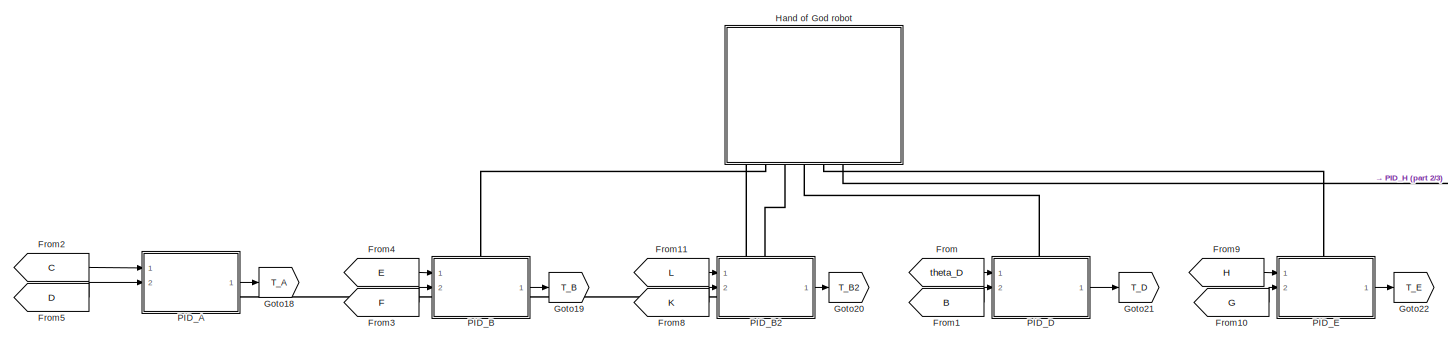
[diagram: root canvas - part 1/3, top center region]
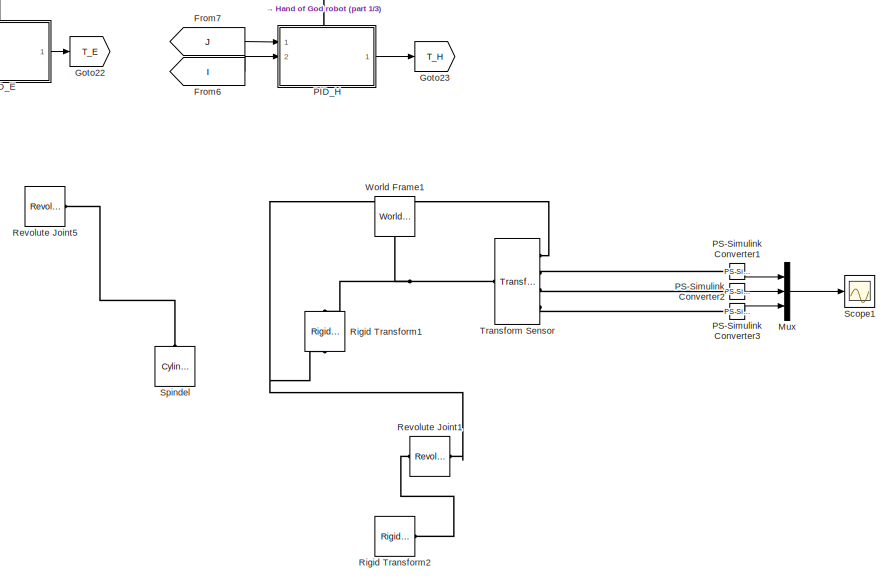
[diagram: root canvas - part 2/3, middle right region]
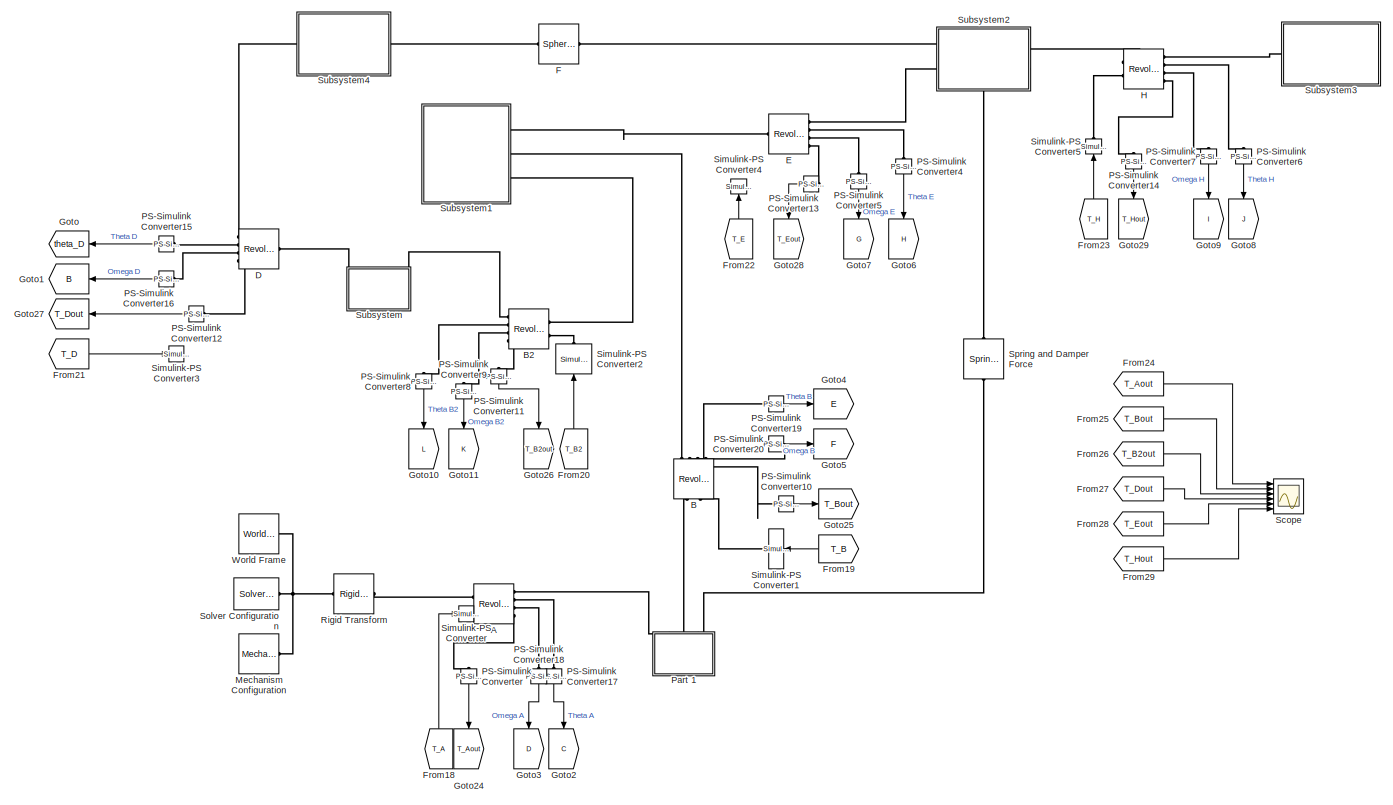
[diagram: root canvas - part 3/3, middle left region]
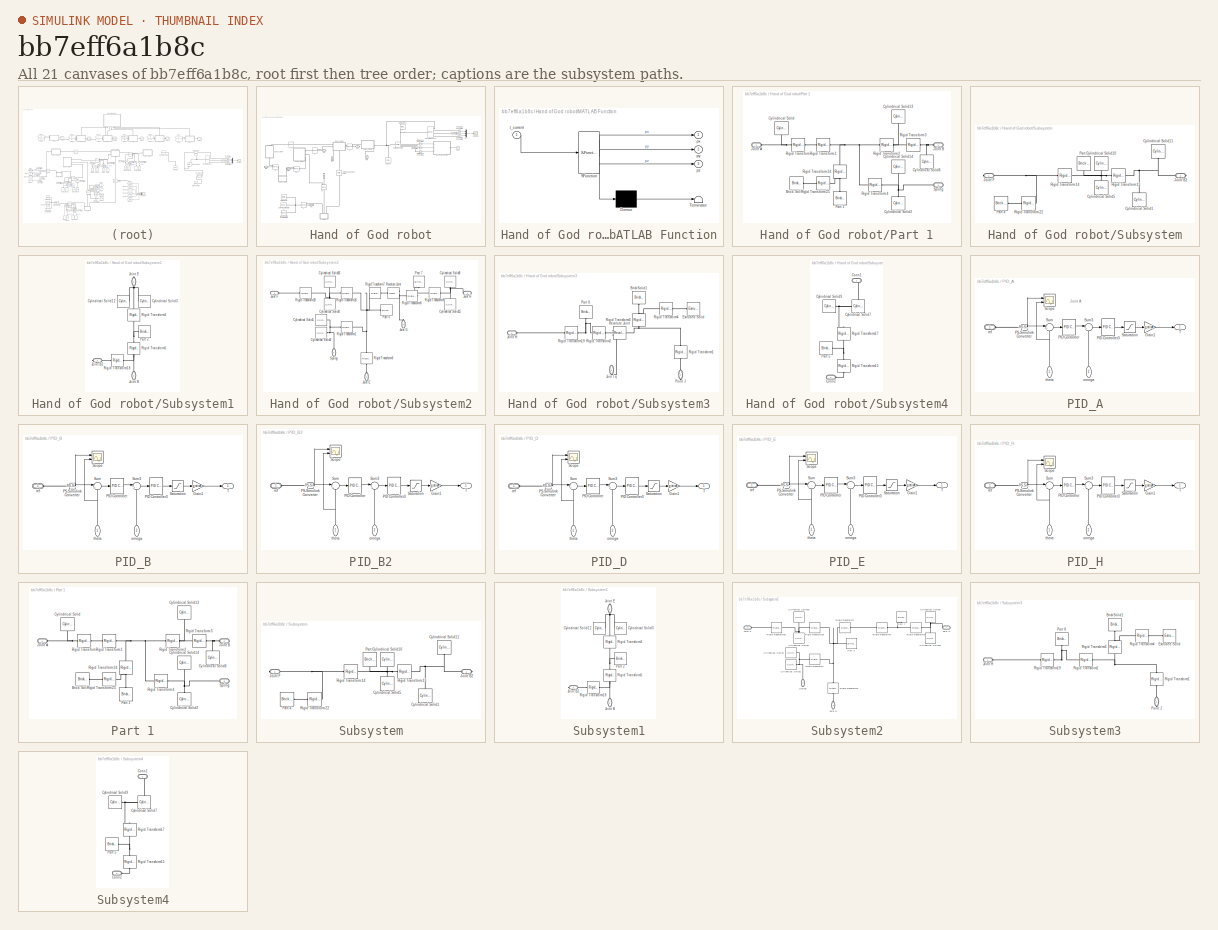
[diagram: thumbnail index - all 21 canvases of the model, root first then tree order]
MODEL slx_bb7eff6a1b8c
KIND model
CONFIG AbsTol = auto
CONFIG EnableMultiTasking = off
CONFIG FixedStep = auto
CONFIG MaxStep = auto
CONFIG MinStep = auto
CONFIG RelTol = 1e-3
CONFIG SampleTimeConstraint = Unconstrained
CONFIG SolverName = VariableStepAuto
CONFIG StartTime = 0.0
CONFIG StopTime = 4
BLOCK [Reference] A  REF=sm_lib/Joints/Revolute Joint
  Ports = [0, 0, 0, 0, 0, 2, 4]
  SourceBlock = sm_lib/Joints/Revolute Joint
  SourceProductBaseCode = MS
  SourceType = Revolute Joint
BLOCK [Reference] B  REF=sm_lib/Joints/Revolute Joint
  NameLocation = right
  Ports = [0, 0, 0, 0, 0, 2, 4]
  SourceBlock = sm_lib/Joints/Revolute Joint
  SourceProductBaseCode = MS
  SourceType = Revolute Joint
BLOCK [Reference] B2  REF=sm_lib/Joints/Revolute Joint
  NameLocation = top
  Ports = [0, 0, 0, 0, 0, 2, 4]
  SourceBlock = sm_lib/Joints/Revolute Joint
  SourceProductBaseCode = MS
  SourceType = Revolute Joint
BLOCK [Reference] D  REF=sm_lib/Joints/Revolute Joint
  NameLocation = top
  Ports = [0, 0, 0, 0, 0, 1, 4]
  SourceBlock = sm_lib/Joints/Revolute Joint
  SourceProductBaseCode = MS
  SourceType = Revolute Joint
BLOCK [Reference] E  REF=sm_lib/Joints/Revolute Joint
  Ports = [0, 0, 0, 0, 0, 1, 4]
  SourceBlock = sm_lib/Joints/Revolute Joint
  SourceProductBaseCode = MS
  SourceType = Revolute Joint
BLOCK [Reference] F  REF=sm_lib/Joints/Spherical
Joint
  Ports = [0, 0, 0, 0, 0, 1, 1]
  SourceBlock = sm_lib/Joints/Spherical\nJoint
  SourceProductBaseCode = MS
  SourceType = Spherical\nJoint
BLOCK [From] From
  GotoTag = theta_D
  IconDisplay = Signal name
BLOCK [From] From1
  GotoTag = B
  IconDisplay = Signal name
BLOCK [From] From10
  GotoTag = G
  IconDisplay = Signal name
BLOCK [From] From11
  GotoTag = L
  IconDisplay = Signal name
BLOCK [From] From18
  GotoTag = T_A
  NameLocation = right
BLOCK [From] From19
  GotoTag = T_B
  NameLocation = top
BLOCK [From] From2
  GotoTag = C
  IconDisplay = Signal name
BLOCK [From] From20
  GotoTag = T_B2
  NameLocation = right
BLOCK [From] From21
  GotoTag = T_D
BLOCK [From] From22
  GotoTag = T_E
  NameLocation = right
BLOCK [From] From23
  GotoTag = T_H
  NameLocation = right
BLOCK [From] From24
  GotoTag = T_Aout
BLOCK [From] From25
  GotoTag = T_Bout
BLOCK [From] From26
  GotoTag = T_B2out
BLOCK [From] From27
  GotoTag = T_Dout
BLOCK [From] From28
  GotoTag = T_Eout
BLOCK [From] From29
  GotoTag = T_Hout
BLOCK [From] From3
  GotoTag = F
  IconDisplay = Signal name
BLOCK [From] From4
  GotoTag = E
  IconDisplay = Signal name
BLOCK [From] From5
  GotoTag = D
  IconDisplay = Signal name
BLOCK [From] From6
  GotoTag = I
  IconDisplay = Signal name
BLOCK [From] From7
  GotoTag = J
  IconDisplay = Signal name
BLOCK [From] From8
  GotoTag = K
  IconDisplay = Signal name
BLOCK [From] From9
  GotoTag = H
  IconDisplay = Signal name
BLOCK [Goto] Goto
  GotoTag = theta_D
  NameLocation = top
BLOCK [Goto] Goto1
  GotoTag = B
  NameLocation = top
BLOCK [Goto] Goto10
  GotoTag = L
  NameLocation = left
BLOCK [Goto] Goto11
  GotoTag = K
  NameLocation = left
BLOCK [Goto] Goto18
  GotoTag = T_A
BLOCK [Goto] Goto19
  GotoTag = T_B
BLOCK [Goto] Goto2
  GotoTag = C
  NameLocation = left
BLOCK [Goto] Goto20
  GotoTag = T_B2
BLOCK [Goto] Goto21
  GotoTag = T_D
BLOCK [Goto] Goto22
  GotoTag = T_E
BLOCK [Goto] Goto23
  GotoTag = T_H
BLOCK [Goto] Goto24
  GotoTag = T_Aout
  NameLocation = left
BLOCK [Goto] Goto25
  GotoTag = T_Bout
BLOCK [Goto] Goto26
  GotoTag = T_B2out
  NameLocation = left
BLOCK [Goto] Goto27
  GotoTag = T_Dout
  NameLocation = top
BLOCK [Goto] Goto28
  GotoTag = T_Eout
  NameLocation = left
BLOCK [Goto] Goto29
  GotoTag = T_Hout
  NameLocation = left
BLOCK [Goto] Goto3
  GotoTag = D
  NameLocation = left
BLOCK [Goto] Goto4
  GotoTag = E
BLOCK [Goto] Goto5
  GotoTag = F
BLOCK [Goto] Goto6
  GotoTag = H
  NameLocation = left
BLOCK [Goto] Goto7
  GotoTag = G
  NameLocation = left
BLOCK [Goto] Goto8
  GotoTag = J
  NameLocation = left
BLOCK [Goto] Goto9
  GotoTag = I
  NameLocation = left
BLOCK [Reference] H  REF=sm_lib/Joints/Revolute Joint
  Ports = [0, 0, 0, 0, 0, 2, 4]
  SourceBlock = sm_lib/Joints/Revolute Joint
  SourceProductBaseCode = MS
  SourceType = Revolute Joint
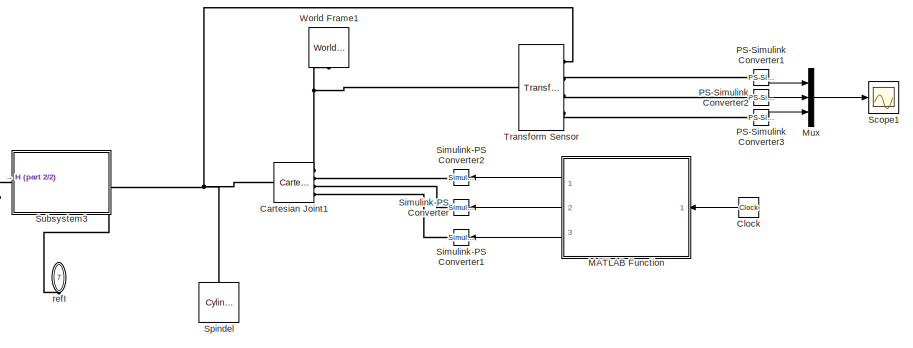
[diagram: Hand of God robot - part 1/2, top right region]
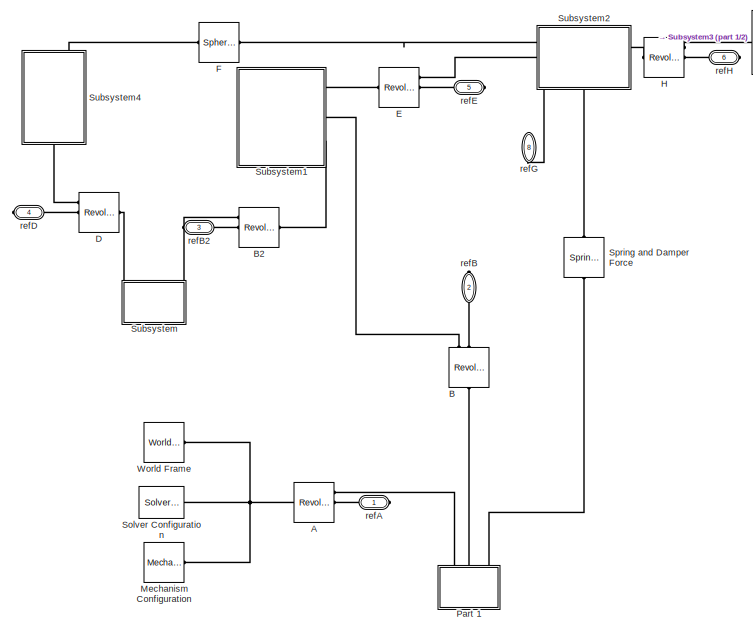
[diagram: Hand of God robot - part 2/2, left side, full height]
BLOCK [SubSystem] Hand of God robot
  NameLocation = left
  Ports = [0, 0, 0, 0, 0, 0, 8]
  RequestExecContextInheritance = off
BLOCK [Reference] Hand of God robot/A  REF=sm_lib/Joints/Revolute Joint
  Ports = [0, 0, 0, 0, 0, 1, 3]
  SourceBlock = sm_lib/Joints/Revolute Joint
  SourceProductBaseCode = MS
  SourceType = Revolute Joint
BLOCK [Reference] Hand of God robot/B  REF=sm_lib/Joints/Revolute Joint
  NameLocation = right
  Ports = [0, 0, 0, 0, 0, 1, 3]
  SourceBlock = sm_lib/Joints/Revolute Joint
  SourceProductBaseCode = MS
  SourceType = Revolute Joint
BLOCK [Reference] Hand of God robot/B2  REF=sm_lib/Joints/Revolute Joint
  NameLocation = top
  Ports = [0, 0, 0, 0, 0, 1, 3]
  SourceBlock = sm_lib/Joints/Revolute Joint
  SourceProductBaseCode = MS
  SourceType = Revolute Joint
BLOCK [Reference] Hand of God robot/Cartesian Joint1  REF=sm_lib/Joints/Cartesian
Joint
  NameLocation = top
  Ports = [0, 0, 0, 0, 0, 4, 1]
  SourceBlock = sm_lib/Joints/Cartesian\nJoint
  SourceProductBaseCode = MS
  SourceType = Cartesian\nJoint
BLOCK [Clock] Hand of God robot/Clock
  NameLocation = top
BLOCK [Reference] Hand of God robot/D  REF=sm_lib/Joints/Revolute Joint
  NameLocation = top
  Ports = [0, 0, 0, 0, 0, 1, 3]
  SourceBlock = sm_lib/Joints/Revolute Joint
  SourceProductBaseCode = MS
  SourceType = Revolute Joint
BLOCK [Reference] Hand of God robot/E  REF=sm_lib/Joints/Revolute Joint
  Ports = [0, 0, 0, 0, 0, 1, 3]
  SourceBlock = sm_lib/Joints/Revolute Joint
  SourceProductBaseCode = MS
  SourceType = Revolute Joint
BLOCK [Reference] Hand of God robot/F  REF=sm_lib/Joints/Spherical
Joint
  Ports = [0, 0, 0, 0, 0, 1, 1]
  SourceBlock = sm_lib/Joints/Spherical\nJoint
  SourceProductBaseCode = MS
  SourceType = Spherical\nJoint
BLOCK [Reference] Hand of God robot/H  REF=sm_lib/Joints/Revolute Joint
  Ports = [0, 0, 0, 0, 0, 1, 3]
  SourceBlock = sm_lib/Joints/Revolute Joint
  SourceProductBaseCode = MS
  SourceType = Revolute Joint
BLOCK [SubSystem] Hand of God robot/MATLAB Function
  ErrorFcn = Stateflow.Translate.translate
  NameLocation = top
  PermitHierarchicalResolution = ExplicitOnly
  Ports = [1, 3]
  RequestExecContextInheritance = off
  SFBlockType = MATLAB Function
  TreatAsAtomicUnit = on
BLOCK [Demux] Hand of God robot/MATLAB Function/ Demux 
  Outputs = 1
  Ports = [1, 1]
BLOCK [S-Function] Hand of God robot/MATLAB Function/ SFunction 
  EnableBusSupport = on
  FunctionName = sf_sfun
  PortCounts = [1 4]
  Ports = [1, 4]
  SFcnIsStateOwnerBlock = off
  SFunctionDeploymentMode = off
  Tag = Stateflow S-Function 1
BLOCK [Terminator] Hand of God robot/MATLAB Function/ Terminator 
BLOCK [Outport] Hand of God robot/MATLAB Function/px
  VectorParamsAs1DForOutWhenUnconnected = off
BLOCK [Outport] Hand of God robot/MATLAB Function/py
  Port = 2
  VectorParamsAs1DForOutWhenUnconnected = off
BLOCK [Outport] Hand of God robot/MATLAB Function/pz
  Port = 3
  VectorParamsAs1DForOutWhenUnconnected = off
BLOCK [Inport] Hand of God robot/MATLAB Function/t_current
BLOCK [Reference] Hand of God robot/Mechanism Configuration  REF=sm_lib/Utilities/Mechanism
Configuration
  Ports = [0, 0, 0, 0, 0, 0, 1]
  SourceBlock = sm_lib/Utilities/Mechanism\nConfiguration
  SourceProductBaseCode = MS
  SourceType = Mechanism\nConfiguration
BLOCK [Mux] Hand of God robot/Mux
  DisplayOption = bar
  Inputs = 3
  Ports = [3, 1]
BLOCK [Reference] Hand of God robot/PS-Simulink Converter1  REF=nesl_utility/PS-Simulink
Converter
  Ports = [0, 1, 0, 0, 0, 1]
  SourceBlock = nesl_utility/PS-Simulink\nConverter
  SourceProductBaseCode = SS,PW,VE
  SourceType = PS-Simulink\nConverter
BLOCK [Reference] Hand of God robot/PS-Simulink Converter2  REF=nesl_utility/PS-Simulink
Converter
  Ports = [0, 1, 0, 0, 0, 1]
  SourceBlock = nesl_utility/PS-Simulink\nConverter
  SourceProductBaseCode = SS,PW,VE
  SourceType = PS-Simulink\nConverter
BLOCK [Reference] Hand of God robot/PS-Simulink Converter3  REF=nesl_utility/PS-Simulink
Converter
  Ports = [0, 1, 0, 0, 0, 1]
  SourceBlock = nesl_utility/PS-Simulink\nConverter
  SourceProductBaseCode = SS,PW,VE
  SourceType = PS-Simulink\nConverter
BLOCK [SubSystem] Hand of God robot/Part 1
  NameLocation = left
  Ports = [0, 0, 0, 0, 0, 3]
  RequestExecContextInheritance = off
BLOCK [Reference] Hand of God robot/Part 1/Brick Solid10  REF=sm_lib/Body Elements/Brick Solid
  Ports = [0, 0, 0, 0, 0, 0, 1]
  SourceBlock = sm_lib/Body Elements/Brick Solid
  SourceProductBaseCode = MS
  SourceType = Brick Solid
BLOCK [Reference] Hand of God robot/Part 1/Cylindrical Solid  REF=sm_lib/Body Elements/Cylindrical Solid
  NameLocation = left
  Ports = [0, 0, 0, 0, 0, 0, 1]
  SourceBlock = sm_lib/Body Elements/Cylindrical Solid
  SourceProductBaseCode = MS
  SourceType = Cylindrical Solid
BLOCK [Reference] Hand of God robot/Part 1/Cylindrical Solid13  REF=sm_lib/Body Elements/Cylindrical Solid
  NameLocation = left
  Ports = [0, 0, 0, 0, 0, 0, 1]
  SourceBlock = sm_lib/Body Elements/Cylindrical Solid
  SourceProductBaseCode = MS
  SourceType = Cylindrical Solid
BLOCK [Reference] Hand of God robot/Part 1/Cylindrical Solid14  REF=sm_lib/Body Elements/Cylindrical Solid
  NameLocation = left
  Ports = [0, 0, 0, 0, 0, 0, 1]
  SourceBlock = sm_lib/Body Elements/Cylindrical Solid
  SourceProductBaseCode = MS
  SourceType = Cylindrical Solid
BLOCK [Reference] Hand of God robot/Part 1/Cylindrical Solid2  REF=sm_lib/Body Elements/Cylindrical Solid
  NameLocation = right
  Ports = [0, 0, 0, 0, 0, 0, 1]
  SourceBlock = sm_lib/Body Elements/Cylindrical Solid
  SourceProductBaseCode = MS
  SourceType = Cylindrical Solid
BLOCK [Reference] Hand of God robot/Part 1/Cylindrical Solid6  REF=sm_lib/Body Elements/Cylindrical Solid
  NameLocation = right
  Ports = [0, 0, 0, 0, 0, 0, 1]
  SourceBlock = sm_lib/Body Elements/Cylindrical Solid
  SourceProductBaseCode = MS
  SourceType = Cylindrical Solid
BLOCK [PMIOPort] Hand of God robot/Part 1/Joint A
  Side = Left
BLOCK [PMIOPort] Hand of God robot/Part 1/Joint B
  NameLocation = top
  Port = 2
  Side = Left
BLOCK [Reference] Hand of God robot/Part 1/Part 1  REF=sm_lib/Body Elements/Brick Solid
  NameLocation = right
  Ports = [0, 0, 0, 0, 0, 0, 1]
  SourceBlock = sm_lib/Body Elements/Brick Solid
  SourceProductBaseCode = MS
  SourceType = Brick Solid
BLOCK [Reference] Hand of God robot/Part 1/Rigid Transform  REF=sm_lib/Frames and
Transforms/Rigid
Transform
  Ports = [0, 0, 0, 0, 0, 1, 1]
  SourceBlock = sm_lib/Frames and\nTransforms/Rigid\nTransform
  SourceProductBaseCode = MS
  SourceType = Rigid\nTransform
BLOCK [Reference] Hand of God robot/Part 1/Rigid Transform1  REF=sm_lib/Frames and
Transforms/Rigid
Transform
  Ports = [0, 0, 0, 0, 0, 1, 1]
  SourceBlock = sm_lib/Frames and\nTransforms/Rigid\nTransform
  SourceProductBaseCode = MS
  SourceType = Rigid\nTransform
BLOCK [Reference] Hand of God robot/Part 1/Rigid Transform2  REF=sm_lib/Frames and
Transforms/Rigid
Transform
  Ports = [0, 0, 0, 0, 0, 1, 1]
  SourceBlock = sm_lib/Frames and\nTransforms/Rigid\nTransform
  SourceProductBaseCode = MS
  SourceType = Rigid\nTransform
BLOCK [Reference] Hand of God robot/Part 1/Rigid Transform24  REF=sm_lib/Frames and
Transforms/Rigid
Transform
  NameLocation = right
  Ports = [0, 0, 0, 0, 0, 1, 1]
  SourceBlock = sm_lib/Frames and\nTransforms/Rigid\nTransform
  SourceProductBaseCode = MS
  SourceType = Rigid\nTransform
BLOCK [Reference] Hand of God robot/Part 1/Rigid Transform25  REF=sm_lib/Frames and
Transforms/Rigid
Transform
  NameLocation = top
  Ports = [0, 0, 0, 0, 0, 1, 1]
  SourceBlock = sm_lib/Frames and\nTransforms/Rigid\nTransform
  SourceProductBaseCode = MS
  SourceType = Rigid\nTransform
BLOCK [Reference] Hand of God robot/Part 1/Rigid Transform3  REF=sm_lib/Frames and
Transforms/Rigid
Transform
  Ports = [0, 0, 0, 0, 0, 1, 1]
  SourceBlock = sm_lib/Frames and\nTransforms/Rigid\nTransform
  SourceProductBaseCode = MS
  SourceType = Rigid\nTransform
BLOCK [Reference] Hand of God robot/Part 1/Rigid Transform4  REF=sm_lib/Frames and
Transforms/Rigid
Transform
  Ports = [0, 0, 0, 0, 0, 1, 1]
  SourceBlock = sm_lib/Frames and\nTransforms/Rigid\nTransform
  SourceProductBaseCode = MS
  SourceType = Rigid\nTransform
BLOCK [PMIOPort] Hand of God robot/Part 1/Spring
  NameLocation = top
  Port = 3
  Side = Left
BLOCK [Scope] Hand of God robot/Scope1
  Floating = off
  NumInputPorts = 1
  Ports = [1]
  ScopeSpecificationString = Simulink.scopes.TimeScopeBlockCfg('CurrentConfiguration', extmgr.ConfigurationSet(extmgr.Configuration('Core','General UI',true),extmgr.Configuration('Core','Source UI',true),extmgr.Configuration('Sources','WiredSimulink',true),extmgr.Configuration('Visuals','Time Domain',true,'SerializedDisplays',{struct('MinYLimReal','-0.85197','MaxYLimReal','2.33564','YLabelReal','','MinYLimMag','0.00000','MaxY...<+1429ch>
BLOCK [Reference] Hand of God robot/Simulink-PS Converter  REF=nesl_utility/Simulink-PS
Converter
  NameLocation = top
  Ports = [1, 0, 0, 0, 0, 0, 1]
  SourceBlock = nesl_utility/Simulink-PS\nConverter
  SourceProductBaseCode = SS,PW,VE
  SourceType = Simulink-PS\nConverter
BLOCK [Reference] Hand of God robot/Simulink-PS Converter1  REF=nesl_utility/Simulink-PS
Converter
  NameLocation = top
  Ports = [1, 0, 0, 0, 0, 0, 1]
  SourceBlock = nesl_utility/Simulink-PS\nConverter
  SourceProductBaseCode = SS,PW,VE
  SourceType = Simulink-PS\nConverter
BLOCK [Reference] Hand of God robot/Simulink-PS Converter2  REF=nesl_utility/Simulink-PS
Converter
  NameLocation = top
  Ports = [1, 0, 0, 0, 0, 0, 1]
  SourceBlock = nesl_utility/Simulink-PS\nConverter
  SourceProductBaseCode = SS,PW,VE
  SourceType = Simulink-PS\nConverter
BLOCK [Reference] Hand of God robot/Solver Configuration  REF=nesl_utility/Solver
Configuration
  Ports = [0, 0, 0, 0, 0, 0, 1]
  SourceBlock = nesl_utility/Solver\nConfiguration
  SourceProductBaseCode = SS,PW,VE
  SourceType = Solver\nConfiguration
BLOCK [Reference] Hand of God robot/Spindel  REF=sm_lib/Body Elements/Cylindrical Solid
  NameLocation = right
  Ports = [0, 0, 0, 0, 0, 0, 1]
  SourceBlock = sm_lib/Body Elements/Cylindrical Solid
  SourceProductBaseCode = MS
  SourceType = Cylindrical Solid
BLOCK [Reference] Hand of God robot/Spring and Damper Force  REF=sm_lib/Forces and
Torques/Spring and
Damper Force
  NameLocation = right
  Ports = [0, 0, 0, 0, 0, 1, 1]
  SourceBlock = sm_lib/Forces and\nTorques/Spring and\nDamper Force
  SourceProductBaseCode = MS
  SourceType = Spring and\nDamper Force
BLOCK [SubSystem] Hand of God robot/Subsystem
  NameLocation = right
  Ports = [0, 0, 0, 0, 0, 0, 2]
  RequestExecContextInheritance = off
BLOCK [Reference] Hand of God robot/Subsystem/Cylindrical Solid1  REF=sm_lib/Body Elements/Cylindrical Solid
  NameLocation = right
  Ports = [0, 0, 0, 0, 0, 0, 1]
  SourceBlock = sm_lib/Body Elements/Cylindrical Solid
  SourceProductBaseCode = MS
  SourceType = Cylindrical Solid
BLOCK [Reference] Hand of God robot/Subsystem/Cylindrical Solid10  REF=sm_lib/Body Elements/Cylindrical Solid
  NameLocation = left
  Ports = [0, 0, 0, 0, 0, 0, 1]
  SourceBlock = sm_lib/Body Elements/Cylindrical Solid
  SourceProductBaseCode = MS
  SourceType = Cylindrical Solid
BLOCK [Reference] Hand of God robot/Subsystem/Cylindrical Solid11  REF=sm_lib/Body Elements/Cylindrical Solid
  Ports = [0, 0, 0, 0, 0, 0, 1]
  SourceBlock = sm_lib/Body Elements/Cylindrical Solid
  SourceProductBaseCode = MS
  SourceType = Cylindrical Solid
BLOCK [Reference] Hand of God robot/Subsystem/Cylindrical Solid5  REF=sm_lib/Body Elements/Cylindrical Solid
  NameLocation = right
  Ports = [0, 0, 0, 0, 0, 0, 1]
  SourceBlock = sm_lib/Body Elements/Cylindrical Solid
  SourceProductBaseCode = MS
  SourceType = Cylindrical Solid
BLOCK [PMIOPort] Hand of God robot/Subsystem/Joint B2
  Port = 2
  Side = Right
BLOCK [PMIOPort] Hand of God robot/Subsystem/Joint F
  NameLocation = top
  Side = Right
BLOCK [Reference] Hand of God robot/Subsystem/Part 3  REF=sm_lib/Body Elements/Brick Solid
  NameLocation = left
  Ports = [0, 0, 0, 0, 0, 0, 1]
  SourceBlock = sm_lib/Body Elements/Brick Solid
  SourceProductBaseCode = MS
  SourceType = Brick Solid
BLOCK [Reference] Hand of God robot/Subsystem/Part 4  REF=sm_lib/Body Elements/Brick Solid
  Ports = [0, 0, 0, 0, 0, 0, 1]
  SourceBlock = sm_lib/Body Elements/Brick Solid
  SourceProductBaseCode = MS
  SourceType = Brick Solid
BLOCK [Reference] Hand of God robot/Subsystem/Rigid Transform13  REF=sm_lib/Frames and
Transforms/Rigid
Transform
  NameLocation = top
  Ports = [0, 0, 0, 0, 0, 1, 1]
  SourceBlock = sm_lib/Frames and\nTransforms/Rigid\nTransform
  SourceProductBaseCode = MS
  SourceType = Rigid\nTransform
BLOCK [Reference] Hand of God robot/Subsystem/Rigid Transform14  REF=sm_lib/Frames and
Transforms/Rigid
Transform
  NameLocation = top
  Ports = [0, 0, 0, 0, 0, 1, 1]
  SourceBlock = sm_lib/Frames and\nTransforms/Rigid\nTransform
  SourceProductBaseCode = MS
  SourceType = Rigid\nTransform
BLOCK [Reference] Hand of God robot/Subsystem/Rigid Transform22  REF=sm_lib/Frames and
Transforms/Rigid
Transform
  NameLocation = top
  Ports = [0, 0, 0, 0, 0, 1, 1]
  SourceBlock = sm_lib/Frames and\nTransforms/Rigid\nTransform
  SourceProductBaseCode = MS
  SourceType = Rigid\nTransform
BLOCK [SubSystem] Hand of God robot/Subsystem1
  Ports = [0, 0, 0, 0, 0, 0, 3]
  RequestExecContextInheritance = off
BLOCK [Reference] Hand of God robot/Subsystem1/Cylindrical Solid12  REF=sm_lib/Body Elements/Cylindrical Solid
  Ports = [0, 0, 0, 0, 0, 0, 1]
  SourceBlock = sm_lib/Body Elements/Cylindrical Solid
  SourceProductBaseCode = MS
  SourceType = Cylindrical Solid
BLOCK [Reference] Hand of God robot/Subsystem1/Cylindrical Solid3  REF=sm_lib/Body Elements/Cylindrical Solid
  NameLocation = top
  Ports = [0, 0, 0, 0, 0, 0, 1]
  SourceBlock = sm_lib/Body Elements/Cylindrical Solid
  SourceProductBaseCode = MS
  SourceType = Cylindrical Solid
BLOCK [PMIOPort] Hand of God robot/Subsystem1/Joint B
  NameLocation = right
  Port = 2
  Side = Right
BLOCK [PMIOPort] Hand of God robot/Subsystem1/Joint B2
  Port = 3
  Side = Right
BLOCK [PMIOPort] Hand of God robot/Subsystem1/Joint E
  NameLocation = right
  Side = Right
BLOCK [Reference] Hand of God robot/Subsystem1/Part 2  REF=sm_lib/Body Elements/Brick Solid
  NameLocation = top
  Ports = [0, 0, 0, 0, 0, 0, 1]
  SourceBlock = sm_lib/Body Elements/Brick Solid
  SourceProductBaseCode = MS
  SourceType = Brick Solid
BLOCK [Reference] Hand of God robot/Subsystem1/Rigid Transform18  REF=sm_lib/Frames and
Transforms/Rigid
Transform
  NameLocation = top
  Ports = [0, 0, 0, 0, 0, 1, 1]
  SourceBlock = sm_lib/Frames and\nTransforms/Rigid\nTransform
  SourceProductBaseCode = MS
  SourceType = Rigid\nTransform
BLOCK [Reference] Hand of God robot/Subsystem1/Rigid Transform3  REF=sm_lib/Frames and
Transforms/Rigid
Transform
  NameLocation = right
  Ports = [0, 0, 0, 0, 0, 1, 1]
  SourceBlock = sm_lib/Frames and\nTransforms/Rigid\nTransform
  SourceProductBaseCode = MS
  SourceType = Rigid\nTransform
BLOCK [Reference] Hand of God robot/Subsystem1/Rigid Transform5  REF=sm_lib/Frames and
Transforms/Rigid
Transform
  NameLocation = right
  Ports = [0, 0, 0, 0, 0, 1, 1]
  SourceBlock = sm_lib/Frames and\nTransforms/Rigid\nTransform
  SourceProductBaseCode = MS
  SourceType = Rigid\nTransform
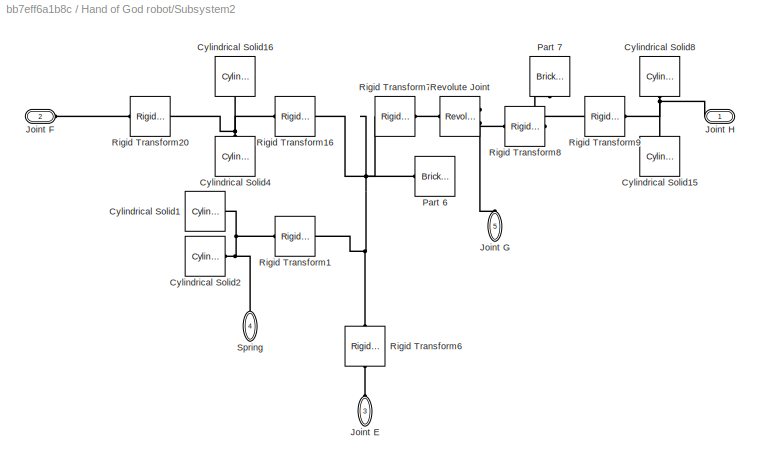
BLOCK [SubSystem] Hand of God robot/Subsystem2
  PortSchema = {"entries":[{"content":{"sides":[{"content":{"connectorIds":["LConn1","LConn2","LConn3"]},"type":"ConnectorPlacement.EquallySpacedRectSide","uuid":"da7f6e69-6578-4727-91f4-7ed436fea6bc"},{"content":{"connectorIds":["RConn1"],"side":"RIGHT"},"type":"ConnectorPlacement.EquallySpacedRectSide","uuid":"90b1d93d-cac2-41cd-9d62-161eb0db7bf2"},{"content":{"connectorIds":[],"side":"TOP"},"type":"ConnectorP...<+415ch>
  Ports = [0, 0, 0, 0, 0, 3, 2]
  RequestExecContextInheritance = off
BLOCK [Reference] Hand of God robot/Subsystem2/Cylindrical Solid1  REF=sm_lib/Body Elements/Cylindrical Solid
  Ports = [0, 0, 0, 0, 0, 0, 1]
  SourceBlock = sm_lib/Body Elements/Cylindrical Solid
  SourceProductBaseCode = MS
  SourceType = Cylindrical Solid
BLOCK [Reference] Hand of God robot/Subsystem2/Cylindrical Solid15  REF=sm_lib/Body Elements/Cylindrical Solid
  NameLocation = right
  Ports = [0, 0, 0, 0, 0, 0, 1]
  SourceBlock = sm_lib/Body Elements/Cylindrical Solid
  SourceProductBaseCode = MS
  SourceType = Cylindrical Solid
BLOCK [Reference] Hand of God robot/Subsystem2/Cylindrical Solid16  REF=sm_lib/Body Elements/Cylindrical Solid
  NameLocation = left
  Ports = [0, 0, 0, 0, 0, 0, 1]
  SourceBlock = sm_lib/Body Elements/Cylindrical Solid
  SourceProductBaseCode = MS
  SourceType = Cylindrical Solid
BLOCK [Reference] Hand of God robot/Subsystem2/Cylindrical Solid2  REF=sm_lib/Body Elements/Cylindrical Solid
  Ports = [0, 0, 0, 0, 0, 0, 1]
  SourceBlock = sm_lib/Body Elements/Cylindrical Solid
  SourceProductBaseCode = MS
  SourceType = Cylindrical Solid
BLOCK [Reference] Hand of God robot/Subsystem2/Cylindrical Solid4  REF=sm_lib/Body Elements/Cylindrical Solid
  NameLocation = right
  Ports = [0, 0, 0, 0, 0, 0, 1]
  SourceBlock = sm_lib/Body Elements/Cylindrical Solid
  SourceProductBaseCode = MS
  SourceType = Cylindrical Solid
BLOCK [Reference] Hand of God robot/Subsystem2/Cylindrical Solid8  REF=sm_lib/Body Elements/Cylindrical Solid
  NameLocation = left
  Ports = [0, 0, 0, 0, 0, 0, 1]
  SourceBlock = sm_lib/Body Elements/Cylindrical Solid
  SourceProductBaseCode = MS
  SourceType = Cylindrical Solid
BLOCK [PMIOPort] Hand of God robot/Subsystem2/Joint E
  NameLocation = right
  Port = 3
  Side = Left
BLOCK [PMIOPort] Hand of God robot/Subsystem2/Joint F
  Port = 2
  Side = Left
BLOCK [PMIOPort] Hand of God robot/Subsystem2/Joint G
  NameLocation = right
  Port = 5
  Side = Left
BLOCK [PMIOPort] Hand of God robot/Subsystem2/Joint H
  Side = Right
BLOCK [Reference] Hand of God robot/Subsystem2/Part 6  REF=sm_lib/Body Elements/Brick Solid
  NameLocation = top
  Ports = [0, 0, 0, 0, 0, 0, 1]
  SourceBlock = sm_lib/Body Elements/Brick Solid
  SourceProductBaseCode = MS
  SourceType = Brick Solid
BLOCK [Reference] Hand of God robot/Subsystem2/Part 7  REF=sm_lib/Body Elements/Brick Solid
  NameLocation = left
  Ports = [0, 0, 0, 0, 0, 0, 1]
  SourceBlock = sm_lib/Body Elements/Brick Solid
  SourceProductBaseCode = MS
  SourceType = Brick Solid
BLOCK [Reference] Hand of God robot/Subsystem2/Revolute Joint  REF=sm_lib/Joints/Revolute Joint
  Ports = [0, 0, 0, 0, 0, 1, 2]
  SourceBlock = sm_lib/Joints/Revolute Joint
  SourceProductBaseCode = MS
  SourceType = Revolute Joint
BLOCK [Reference] Hand of God robot/Subsystem2/Rigid Transform1  REF=sm_lib/Frames and
Transforms/Rigid
Transform
  NameLocation = top
  Ports = [0, 0, 0, 0, 0, 1, 1]
  SourceBlock = sm_lib/Frames and\nTransforms/Rigid\nTransform
  SourceProductBaseCode = MS
  SourceType = Rigid\nTransform
BLOCK [Reference] Hand of God robot/Subsystem2/Rigid Transform16  REF=sm_lib/Frames and
Transforms/Rigid
Transform
  Ports = [0, 0, 0, 0, 0, 1, 1]
  SourceBlock = sm_lib/Frames and\nTransforms/Rigid\nTransform
  SourceProductBaseCode = MS
  SourceType = Rigid\nTransform
BLOCK [Reference] Hand of God robot/Subsystem2/Rigid Transform20  REF=sm_lib/Frames and
Transforms/Rigid
Transform
  Ports = [0, 0, 0, 0, 0, 1, 1]
  SourceBlock = sm_lib/Frames and\nTransforms/Rigid\nTransform
  SourceProductBaseCode = MS
  SourceType = Rigid\nTransform
BLOCK [Reference] Hand of God robot/Subsystem2/Rigid Transform6  REF=sm_lib/Frames and
Transforms/Rigid
Transform
  NameLocation = right
  Ports = [0, 0, 0, 0, 0, 1, 1]
  SourceBlock = sm_lib/Frames and\nTransforms/Rigid\nTransform
  SourceProductBaseCode = MS
  SourceType = Rigid\nTransform
BLOCK [Reference] Hand of God robot/Subsystem2/Rigid Transform7  REF=sm_lib/Frames and
Transforms/Rigid
Transform
  Ports = [0, 0, 0, 0, 0, 1, 1]
  SourceBlock = sm_lib/Frames and\nTransforms/Rigid\nTransform
  SourceProductBaseCode = MS
  SourceType = Rigid\nTransform
BLOCK [Reference] Hand of God robot/Subsystem2/Rigid Transform8  REF=sm_lib/Frames and
Transforms/Rigid
Transform
  Ports = [0, 0, 0, 0, 0, 1, 1]
  SourceBlock = sm_lib/Frames and\nTransforms/Rigid\nTransform
  SourceProductBaseCode = MS
  SourceType = Rigid\nTransform
BLOCK [Reference] Hand of God robot/Subsystem2/Rigid Transform9  REF=sm_lib/Frames and
Transforms/Rigid
Transform
  Ports = [0, 0, 0, 0, 0, 1, 1]
  SourceBlock = sm_lib/Frames and\nTransforms/Rigid\nTransform
  SourceProductBaseCode = MS
  SourceType = Rigid\nTransform
BLOCK [PMIOPort] Hand of God robot/Subsystem2/Spring
  NameLocation = left
  Port = 4
  Side = Right
BLOCK [SubSystem] Hand of God robot/Subsystem3
  Ports = [0, 0, 0, 0, 0, 1, 2]
  RequestExecContextInheritance = off
BLOCK [Reference] Hand of God robot/Subsystem3/Brick Solid1  REF=sm_lib/Body Elements/Brick Solid
  NameLocation = left
  Ports = [0, 0, 0, 0, 0, 0, 1]
  SourceBlock = sm_lib/Body Elements/Brick Solid
  SourceProductBaseCode = MS
  SourceType = Brick Solid
BLOCK [Reference] Hand of God robot/Subsystem3/Extruded Solid  REF=sm_lib/Body Elements/Extruded Solid
  NameLocation = top
  Ports = [0, 0, 0, 0, 0, 0, 1]
  SourceBlock = sm_lib/Body Elements/Extruded Solid
  SourceProductBaseCode = MS
  SourceType = Extruded Solid
BLOCK [PMIOPort] Hand of God robot/Subsystem3/Join I q
  NameLocation = left
  Port = 3
  Side = Right
BLOCK [PMIOPort] Hand of God robot/Subsystem3/Joint H
  Side = Left
BLOCK [Reference] Hand of God robot/Subsystem3/Part 8  REF=sm_lib/Body Elements/Brick Solid
  NameLocation = left
  Ports = [0, 0, 0, 0, 0, 0, 1]
  SourceBlock = sm_lib/Body Elements/Brick Solid
  SourceProductBaseCode = MS
  SourceType = Brick Solid
BLOCK [PMIOPort] Hand of God robot/Subsystem3/Point J
  NameLocation = left
  Port = 2
  Side = Right
BLOCK [Reference] Hand of God robot/Subsystem3/Revolute Joint  REF=sm_lib/Joints/Revolute Joint
  NameLocation = top
  Ports = [0, 0, 0, 0, 0, 1, 2]
  SourceBlock = sm_lib/Joints/Revolute Joint
  SourceProductBaseCode = MS
  SourceType = Revolute Joint
BLOCK [Reference] Hand of God robot/Subsystem3/Rigid Transform1  REF=sm_lib/Frames and
Transforms/Rigid
Transform
  NameLocation = right
  Ports = [0, 0, 0, 0, 0, 1, 1]
  SourceBlock = sm_lib/Frames and\nTransforms/Rigid\nTransform
  SourceProductBaseCode = MS
  SourceType = Rigid\nTransform
BLOCK [Reference] Hand of God robot/Subsystem3/Rigid Transform19  REF=sm_lib/Frames and
Transforms/Rigid
Transform
  Ports = [0, 0, 0, 0, 0, 1, 1]
  SourceBlock = sm_lib/Frames and\nTransforms/Rigid\nTransform
  SourceProductBaseCode = MS
  SourceType = Rigid\nTransform
BLOCK [Reference] Hand of God robot/Subsystem3/Rigid Transform2  REF=sm_lib/Frames and
Transforms/Rigid
Transform
  Ports = [0, 0, 0, 0, 0, 1, 1]
  SourceBlock = sm_lib/Frames and\nTransforms/Rigid\nTransform
  SourceProductBaseCode = MS
  SourceType = Rigid\nTransform
BLOCK [Reference] Hand of God robot/Subsystem3/Rigid Transform3  REF=sm_lib/Frames and
Transforms/Rigid
Transform
  NameLocation = right
  Ports = [0, 0, 0, 0, 0, 1, 1]
  SourceBlock = sm_lib/Frames and\nTransforms/Rigid\nTransform
  SourceProductBaseCode = MS
  SourceType = Rigid\nTransform
BLOCK [Reference] Hand of God robot/Subsystem3/Rigid Transform4  REF=sm_lib/Frames and
Transforms/Rigid
Transform
  NameLocation = top
  Ports = [0, 0, 0, 0, 0, 1, 1]
  SourceBlock = sm_lib/Frames and\nTransforms/Rigid\nTransform
  SourceProductBaseCode = MS
  SourceType = Rigid\nTransform
BLOCK [SubSystem] Hand of God robot/Subsystem4
  NameLocation = right
  Ports = [0, 0, 0, 0, 0, 1, 1]
  RequestExecContextInheritance = off
BLOCK [PMIOPort] Hand of God robot/Subsystem4/Conn1
  Side = Right
BLOCK [PMIOPort] Hand of God robot/Subsystem4/Conn2
  Port = 2
  Side = Left
BLOCK [Reference] Hand of God robot/Subsystem4/Cylindrical Solid7  REF=sm_lib/Body Elements/Cylindrical Solid
  NameLocation = top
  Ports = [0, 0, 0, 0, 0, 0, 1]
  SourceBlock = sm_lib/Body Elements/Cylindrical Solid
  SourceProductBaseCode = MS
  SourceType = Cylindrical Solid
BLOCK [Reference] Hand of God robot/Subsystem4/Cylindrical Solid9  REF=sm_lib/Body Elements/Cylindrical Solid
  Ports = [0, 0, 0, 0, 0, 0, 1]
  SourceBlock = sm_lib/Body Elements/Cylindrical Solid
  SourceProductBaseCode = MS
  SourceType = Cylindrical Solid
BLOCK [Reference] Hand of God robot/Subsystem4/Part 5  REF=sm_lib/Body Elements/Brick Solid
  Ports = [0, 0, 0, 0, 0, 0, 1]
  SourceBlock = sm_lib/Body Elements/Brick Solid
  SourceProductBaseCode = MS
  SourceType = Brick Solid
BLOCK [Reference] Hand of God robot/Subsystem4/Rigid Transform15  REF=sm_lib/Frames and
Transforms/Rigid
Transform
  NameLocation = right
  Ports = [0, 0, 0, 0, 0, 1, 1]
  SourceBlock = sm_lib/Frames and\nTransforms/Rigid\nTransform
  SourceProductBaseCode = MS
  SourceType = Rigid\nTransform
BLOCK [Reference] Hand of God robot/Subsystem4/Rigid Transform17  REF=sm_lib/Frames and
Transforms/Rigid
Transform
  NameLocation = right
  Ports = [0, 0, 0, 0, 0, 1, 1]
  SourceBlock = sm_lib/Frames and\nTransforms/Rigid\nTransform
  SourceProductBaseCode = MS
  SourceType = Rigid\nTransform
BLOCK [Reference] Hand of God robot/Transform Sensor  REF=sm_lib/Frames and
Transforms/Transform
Sensor
  Ports = [0, 0, 0, 0, 0, 1, 4]
  SourceBlock = sm_lib/Frames and\nTransforms/Transform\nSensor
  SourceProductBaseCode = MS
  SourceType = Transform\nSensor
BLOCK [Reference] Hand of God robot/World Frame  REF=sm_lib/Frames and
Transforms/World Frame
  Ports = [0, 0, 0, 0, 0, 0, 1]
  SourceBlock = sm_lib/Frames and\nTransforms/World Frame
  SourceProductBaseCode = MS
  SourceType = World Frame
BLOCK [Reference] Hand of God robot/World Frame1  REF=sm_lib/Frames and
Transforms/World Frame
  NameLocation = left
  Ports = [0, 0, 0, 0, 0, 0, 1]
  SourceBlock = sm_lib/Frames and\nTransforms/World Frame
  SourceProductBaseCode = MS
  SourceType = World Frame
BLOCK [PMIOPort] Hand of God robot/refA
  NameLocation = top
  Side = Right
BLOCK [PMIOPort] Hand of God robot/refB
  NameLocation = left
  Port = 2
  Side = Right
BLOCK [PMIOPort] Hand of God robot/refB2
  Port = 3
  Side = Right
BLOCK [PMIOPort] Hand of God robot/refD
  Port = 4
  Side = Right
BLOCK [PMIOPort] Hand of God robot/refE
  NameLocation = top
  Port = 5
  Side = Right
BLOCK [PMIOPort] Hand of God robot/refG
  NameLocation = right
  Port = 8
  Side = Right
BLOCK [PMIOPort] Hand of God robot/refH
  NameLocation = top
  Port = 6
  Side = Right
BLOCK [PMIOPort] Hand of God robot/refI
  NameLocation = right
  Port = 7
  Side = Right
BLOCK [Reference] Mechanism Configuration  REF=sm_lib/Utilities/Mechanism
Configuration
  Ports = [0, 0, 0, 0, 0, 0, 1]
  SourceBlock = sm_lib/Utilities/Mechanism\nConfiguration
  SourceProductBaseCode = MS
  SourceType = Mechanism\nConfiguration
BLOCK [Mux] Mux
  Commented = on
  DisplayOption = bar
  Inputs = 3
  Ports = [3, 1]
BLOCK [SubSystem] PID_A
  PortSchema = {"entries":[{"content":{"sides":[{"content":{"connectorIds":["In1","In2"]},"type":"ConnectorPlacement.EquallySpacedRectSide","uuid":"88fb2923-d567-49e7-965d-54b8b92ddc6d"},{"content":{"connectorIds":["Out1"],"side":"RIGHT"},"type":"ConnectorPlacement.EquallySpacedRectSide","uuid":"46ea93fe-e994-4ece-a41c-2bcb9003d689"},{"content":{"connectorIds":["LConn1"],"side":"TOP"},"type":"ConnectorPlacement....<+254ch>  <repeated x6 — deduplicated; at blocks: PID_A, PID_B, PID_B2, PID_D, PID_E, PID_H>
  Ports = [2, 1, 0, 0, 0, 1]
  RequestExecContextInheritance = off
BLOCK [Gain] PID_A/Gain1
  Gain = g_ratioA
BLOCK [Reference] PID_A/PID Controller  REF=slpidlib/PID Controller
  Ports = [1, 1]
  SourceBlock = slpidlib/PID Controller
  SourceProductBaseCode = SL
  SourceType = PID 1dof
BLOCK [Reference] PID_A/PID Controller3  REF=slpidlib/PID Controller
  Ports = [1, 1]
  SourceBlock = slpidlib/PID Controller
  SourceProductBaseCode = SL
  SourceType = PID 1dof
BLOCK [Reference] PID_A/PS-Simulink Converter  REF=nesl_utility/PS-Simulink
Converter
  Ports = [0, 1, 0, 0, 0, 1]
  SourceBlock = nesl_utility/PS-Simulink\nConverter
  SourceProductBaseCode = SS,PW,VE
  SourceType = PS-Simulink\nConverter
BLOCK [Saturate] PID_A/Saturation
  LowerLimit = -I_max*KmA
  UpperLimit = I_max*KmA
  ZeroCross = off
BLOCK [Scope] PID_A/Scope
  Floating = off
  NumInputPorts = 2
  Ports = [2]
  ScopeSpecificationString = Simulink.scopes.TimeScopeBlockCfg('CurrentConfiguration', extmgr.ConfigurationSet(extmgr.Configuration('Core','General UI',true),extmgr.Configuration('Core','Source UI',true),extmgr.Configuration('Sources','WiredSimulink',true,'DataLoggingVariableName','ScopeData1'),extmgr.Configuration('Visuals','Time Domain',true,'SerializedDisplays',{struct('MinYLimReal','0.19254','MaxYLimReal','3.55182','YLabe...<+1415ch>
BLOCK [Sum] PID_A/Sum
  Inputs = |+-
  Ports = [2, 1]
BLOCK [Sum] PID_A/Sum3
  Inputs = |+-
  Ports = [2, 1]
BLOCK [Outport] PID_A/T
BLOCK [Inport] PID_A/omega
  NameLocation = right
  Port = 2
BLOCK [PMIOPort] PID_A/ref
  Side = Left
BLOCK [Inport] PID_A/theta
  NameLocation = right
BLOCK [SubSystem] PID_B
  Ports = [2, 1, 0, 0, 0, 1]
  RequestExecContextInheritance = off
BLOCK [Gain] PID_B/Gain1
  Gain = g_ratioA
BLOCK [Reference] PID_B/PID Controller  REF=slpidlib/PID Controller
  Ports = [1, 1]
  SourceBlock = slpidlib/PID Controller
  SourceProductBaseCode = SL
  SourceType = PID 1dof
BLOCK [Reference] PID_B/PID Controller3  REF=slpidlib/PID Controller
  Ports = [1, 1]
  SourceBlock = slpidlib/PID Controller
  SourceProductBaseCode = SL
  SourceType = PID 1dof
BLOCK [Reference] PID_B/PS-Simulink Converter  REF=nesl_utility/PS-Simulink
Converter
  Ports = [0, 1, 0, 0, 0, 1]
  SourceBlock = nesl_utility/PS-Simulink\nConverter
  SourceProductBaseCode = SS,PW,VE
  SourceType = PS-Simulink\nConverter
BLOCK [Saturate] PID_B/Saturation
  LowerLimit = -I_max*KmA
  UpperLimit = I_max*KmA
  ZeroCross = off
BLOCK [Scope] PID_B/Scope
  Floating = off
  NumInputPorts = 2
  Ports = [2]
  ScopeSpecificationString = Simulink.scopes.TimeScopeBlockCfg('CurrentConfiguration', extmgr.ConfigurationSet(extmgr.Configuration('Core','General UI',true),extmgr.Configuration('Core','Source UI',true),extmgr.Configuration('Sources','WiredSimulink',true,'DataLoggingVariableName','ScopeData2'),extmgr.Configuration('Visuals','Time Domain',true,'SerializedDisplays',{struct('MinYLimReal','-1.81282','MaxYLimReal','1.81482','YLab...<+1417ch>
BLOCK [Sum] PID_B/Sum
  Inputs = |+-
  Ports = [2, 1]
BLOCK [Sum] PID_B/Sum3
  Inputs = |+-
  Ports = [2, 1]
BLOCK [Outport] PID_B/T
BLOCK [Inport] PID_B/omega
  NameLocation = right
  Port = 2
BLOCK [PMIOPort] PID_B/ref
  Side = Left
BLOCK [Inport] PID_B/theta
  NameLocation = right
BLOCK [SubSystem] PID_B2
  Ports = [2, 1, 0, 0, 0, 1]
  RequestExecContextInheritance = off
BLOCK [Gain] PID_B2/Gain1
  Gain = g_ratioA
BLOCK [Reference] PID_B2/PID Controller  REF=slpidlib/PID Controller
  Ports = [1, 1]
  SourceBlock = slpidlib/PID Controller
  SourceProductBaseCode = SL
  SourceType = PID 1dof
BLOCK [Reference] PID_B2/PID Controller3  REF=slpidlib/PID Controller
  Ports = [1, 1]
  SourceBlock = slpidlib/PID Controller
  SourceProductBaseCode = SL
  SourceType = PID 1dof
BLOCK [Reference] PID_B2/PS-Simulink Converter  REF=nesl_utility/PS-Simulink
Converter
  Ports = [0, 1, 0, 0, 0, 1]
  SourceBlock = nesl_utility/PS-Simulink\nConverter
  SourceProductBaseCode = SS,PW,VE
  SourceType = PS-Simulink\nConverter
BLOCK [Saturate] PID_B2/Saturation
  LowerLimit = -I_max*KmA
  UpperLimit = I_max*KmA
  ZeroCross = off
BLOCK [Scope] PID_B2/Scope
  Floating = off
  NumInputPorts = 2
  Ports = [2]
  ScopeSpecificationString = Simulink.scopes.TimeScopeBlockCfg('CurrentConfiguration', extmgr.ConfigurationSet(extmgr.Configuration('Core','General UI',true),extmgr.Configuration('Core','Source UI',true),extmgr.Configuration('Sources','WiredSimulink',true,'DataLoggingVariableName','ScopeData3'),extmgr.Configuration('Visuals','Time Domain',true,'SerializedDisplays',{struct('MinYLimReal','-0.95071','MaxYLimReal','2.54101','YLab...<+1388ch>
BLOCK [Sum] PID_B2/Sum
  Inputs = |+-
  Ports = [2, 1]
BLOCK [Sum] PID_B2/Sum3
  Inputs = |+-
  Ports = [2, 1]
BLOCK [Outport] PID_B2/T
BLOCK [Inport] PID_B2/omega
  NameLocation = right
  Port = 2
BLOCK [PMIOPort] PID_B2/ref
  Side = Left
BLOCK [Inport] PID_B2/theta
  NameLocation = right
BLOCK [SubSystem] PID_D
  Ports = [2, 1, 0, 0, 0, 1]
  RequestExecContextInheritance = off
BLOCK [Gain] PID_D/Gain1
  Gain = g_ratioA
BLOCK [Reference] PID_D/PID Controller  REF=slpidlib/PID Controller
  Ports = [1, 1]
  SourceBlock = slpidlib/PID Controller
  SourceProductBaseCode = SL
  SourceType = PID 1dof
BLOCK [Reference] PID_D/PID Controller3  REF=slpidlib/PID Controller
  Ports = [1, 1]
  SourceBlock = slpidlib/PID Controller
  SourceProductBaseCode = SL
  SourceType = PID 1dof
BLOCK [Reference] PID_D/PS-Simulink Converter  REF=nesl_utility/PS-Simulink
Converter
  Ports = [0, 1, 0, 0, 0, 1]
  SourceBlock = nesl_utility/PS-Simulink\nConverter
  SourceProductBaseCode = SS,PW,VE
  SourceType = PS-Simulink\nConverter
BLOCK [Saturate] PID_D/Saturation
  LowerLimit = -I_max*KmA
  UpperLimit = I_max*KmA
  ZeroCross = off
BLOCK [Scope] PID_D/Scope
  Floating = off
  NumInputPorts = 2
  Ports = [2]
  ScopeSpecificationString = Simulink.scopes.TimeScopeBlockCfg('CurrentConfiguration', extmgr.ConfigurationSet(extmgr.Configuration('Core','General UI',true),extmgr.Configuration('Core','Source UI',true),extmgr.Configuration('Sources','WiredSimulink',true,'DataLoggingVariableName','ScopeData4'),extmgr.Configuration('Visuals','Time Domain',true,'SerializedDisplays',{struct('MinYLimReal','-2.54101','MaxYLimReal','0.95071','YLab...<+1388ch>
BLOCK [Sum] PID_D/Sum
  Inputs = |+-
  Ports = [2, 1]
BLOCK [Sum] PID_D/Sum3
  Inputs = |+-
  Ports = [2, 1]
BLOCK [Outport] PID_D/T
BLOCK [Inport] PID_D/omega
  NameLocation = right
  Port = 2
BLOCK [PMIOPort] PID_D/ref
  Side = Left
BLOCK [Inport] PID_D/theta
  NameLocation = right
BLOCK [SubSystem] PID_E
  Ports = [2, 1, 0, 0, 0, 1]
  RequestExecContextInheritance = off
BLOCK [Gain] PID_E/Gain1
  Gain = g_ratioA
BLOCK [Reference] PID_E/PID Controller  REF=slpidlib/PID Controller
  Ports = [1, 1]
  SourceBlock = slpidlib/PID Controller
  SourceProductBaseCode = SL
  SourceType = PID 1dof
BLOCK [Reference] PID_E/PID Controller3  REF=slpidlib/PID Controller
  Ports = [1, 1]
  SourceBlock = slpidlib/PID Controller
  SourceProductBaseCode = SL
  SourceType = PID 1dof
BLOCK [Reference] PID_E/PS-Simulink Converter  REF=nesl_utility/PS-Simulink
Converter
  Ports = [0, 1, 0, 0, 0, 1]
  SourceBlock = nesl_utility/PS-Simulink\nConverter
  SourceProductBaseCode = SS,PW,VE
  SourceType = PS-Simulink\nConverter
BLOCK [Saturate] PID_E/Saturation
  LowerLimit = -I_max*KmA
  UpperLimit = I_max*KmA
  ZeroCross = off
BLOCK [Scope] PID_E/Scope
  Floating = off
  NumInputPorts = 2
  Ports = [2]
  ScopeSpecificationString = Simulink.scopes.TimeScopeBlockCfg('CurrentConfiguration', extmgr.ConfigurationSet(extmgr.Configuration('Core','General UI',true),extmgr.Configuration('Core','Source UI',true),extmgr.Configuration('Sources','WiredSimulink',true,'DataLoggingVariableName','ScopeData5'),extmgr.Configuration('Visuals','Time Domain',true,'SerializedDisplays',{struct('MinYLimReal','-0.95071','MaxYLimReal','2.54101','YLab...<+1388ch>
BLOCK [Sum] PID_E/Sum
  Inputs = |+-
  Ports = [2, 1]
BLOCK [Sum] PID_E/Sum3
  Inputs = |+-
  Ports = [2, 1]
BLOCK [Outport] PID_E/T
BLOCK [Inport] PID_E/omega
  NameLocation = right
  Port = 2
BLOCK [PMIOPort] PID_E/ref
  Side = Left
BLOCK [Inport] PID_E/theta
  NameLocation = right
BLOCK [SubSystem] PID_H
  Ports = [2, 1, 0, 0, 0, 1]
  RequestExecContextInheritance = off
BLOCK [Gain] PID_H/Gain1
  Gain = g_ratioA
BLOCK [Reference] PID_H/PID Controller  REF=slpidlib/PID Controller
  Ports = [1, 1]
  SourceBlock = slpidlib/PID Controller
  SourceProductBaseCode = SL
  SourceType = PID 1dof
BLOCK [Reference] PID_H/PID Controller3  REF=slpidlib/PID Controller
  Ports = [1, 1]
  SourceBlock = slpidlib/PID Controller
  SourceProductBaseCode = SL
  SourceType = PID 1dof
BLOCK [Reference] PID_H/PS-Simulink Converter  REF=nesl_utility/PS-Simulink
Converter
  Ports = [0, 1, 0, 0, 0, 1]
  SourceBlock = nesl_utility/PS-Simulink\nConverter
  SourceProductBaseCode = SS,PW,VE
  SourceType = PS-Simulink\nConverter
BLOCK [Saturate] PID_H/Saturation
  LowerLimit = -I_max*KmA
  UpperLimit = I_max*KmA
  ZeroCross = off
BLOCK [Scope] PID_H/Scope
  Floating = off
  NumInputPorts = 2
  Ports = [2]
  ScopeSpecificationString = Simulink.scopes.TimeScopeBlockCfg('CurrentConfiguration', extmgr.ConfigurationSet(extmgr.Configuration('Core','General UI',true),extmgr.Configuration('Core','Source UI',true),extmgr.Configuration('Sources','WiredSimulink',true,'DataLoggingVariableName','ScopeData6'),extmgr.Configuration('Visuals','Time Domain',true,'SerializedDisplays',{struct('MinYLimReal','-3.19332','MaxYLimReal','-0.91315','YLa...<+1419ch>
BLOCK [Sum] PID_H/Sum
  Inputs = |+-
  Ports = [2, 1]
BLOCK [Sum] PID_H/Sum3
  Inputs = |+-
  Ports = [2, 1]
BLOCK [Outport] PID_H/T
BLOCK [Inport] PID_H/omega
  NameLocation = right
  Port = 2
BLOCK [PMIOPort] PID_H/ref
  Side = Left
BLOCK [Inport] PID_H/theta
  NameLocation = right
BLOCK [Reference] PS-Simulink Converter  REF=nesl_utility/PS-Simulink
Converter
  NameLocation = left
  Ports = [0, 1, 0, 0, 0, 1]
  SourceBlock = nesl_utility/PS-Simulink\nConverter
  SourceProductBaseCode = SS,PW,VE
  SourceType = PS-Simulink\nConverter
BLOCK [Reference] PS-Simulink Converter1  REF=nesl_utility/PS-Simulink
Converter
  Commented = on
  Ports = [0, 1, 0, 0, 0, 1]
  SourceBlock = nesl_utility/PS-Simulink\nConverter
  SourceProductBaseCode = SS,PW,VE
  SourceType = PS-Simulink\nConverter
BLOCK [Reference] PS-Simulink Converter10  REF=nesl_utility/PS-Simulink
Converter
  Ports = [0, 1, 0, 0, 0, 1]
  SourceBlock = nesl_utility/PS-Simulink\nConverter
  SourceProductBaseCode = SS,PW,VE
  SourceType = PS-Simulink\nConverter
BLOCK [Reference] PS-Simulink Converter11  REF=nesl_utility/PS-Simulink
Converter
  NameLocation = left
  Ports = [0, 1, 0, 0, 0, 1]
  SourceBlock = nesl_utility/PS-Simulink\nConverter
  SourceProductBaseCode = SS,PW,VE
  SourceType = PS-Simulink\nConverter
BLOCK [Reference] PS-Simulink Converter12  REF=nesl_utility/PS-Simulink
Converter
  NameLocation = top
  Ports = [0, 1, 0, 0, 0, 1]
  SourceBlock = nesl_utility/PS-Simulink\nConverter
  SourceProductBaseCode = SS,PW,VE
  SourceType = PS-Simulink\nConverter
BLOCK [Reference] PS-Simulink Converter13  REF=nesl_utility/PS-Simulink
Converter
  NameLocation = top
  Ports = [0, 1, 0, 0, 0, 1]
  SourceBlock = nesl_utility/PS-Simulink\nConverter
  SourceProductBaseCode = SS,PW,VE
  SourceType = PS-Simulink\nConverter
BLOCK [Reference] PS-Simulink Converter14  REF=nesl_utility/PS-Simulink
Converter
  NameLocation = left
  Ports = [0, 1, 0, 0, 0, 1]
  SourceBlock = nesl_utility/PS-Simulink\nConverter
  SourceProductBaseCode = SS,PW,VE
  SourceType = PS-Simulink\nConverter
BLOCK [Reference] PS-Simulink Converter15  REF=nesl_utility/PS-Simulink
Converter
  NameLocation = top
  Ports = [0, 1, 0, 0, 0, 1]
  SourceBlock = nesl_utility/PS-Simulink\nConverter
  SourceProductBaseCode = SS,PW,VE
  SourceType = PS-Simulink\nConverter
BLOCK [Reference] PS-Simulink Converter16  REF=nesl_utility/PS-Simulink
Converter
  NameLocation = top
  Ports = [0, 1, 0, 0, 0, 1]
  SourceBlock = nesl_utility/PS-Simulink\nConverter
  SourceProductBaseCode = SS,PW,VE
  SourceType = PS-Simulink\nConverter
BLOCK [Reference] PS-Simulink Converter17  REF=nesl_utility/PS-Simulink
Converter
  NameLocation = left
  Ports = [0, 1, 0, 0, 0, 1]
  SourceBlock = nesl_utility/PS-Simulink\nConverter
  SourceProductBaseCode = SS,PW,VE
  SourceType = PS-Simulink\nConverter
BLOCK [Reference] PS-Simulink Converter18  REF=nesl_utility/PS-Simulink
Converter
  NameLocation = left
  Ports = [0, 1, 0, 0, 0, 1]
  SourceBlock = nesl_utility/PS-Simulink\nConverter
  SourceProductBaseCode = SS,PW,VE
  SourceType = PS-Simulink\nConverter
BLOCK [Reference] PS-Simulink Converter19  REF=nesl_utility/PS-Simulink
Converter
  Ports = [0, 1, 0, 0, 0, 1]
  SourceBlock = nesl_utility/PS-Simulink\nConverter
  SourceProductBaseCode = SS,PW,VE
  SourceType = PS-Simulink\nConverter
BLOCK [Reference] PS-Simulink Converter2  REF=nesl_utility/PS-Simulink
Converter
  Commented = on
  Ports = [0, 1, 0, 0, 0, 1]
  SourceBlock = nesl_utility/PS-Simulink\nConverter
  SourceProductBaseCode = SS,PW,VE
  SourceType = PS-Simulink\nConverter
BLOCK [Reference] PS-Simulink Converter20  REF=nesl_utility/PS-Simulink
Converter
  Ports = [0, 1, 0, 0, 0, 1]
  SourceBlock = nesl_utility/PS-Simulink\nConverter
  SourceProductBaseCode = SS,PW,VE
  SourceType = PS-Simulink\nConverter
BLOCK [Reference] PS-Simulink Converter3  REF=nesl_utility/PS-Simulink
Converter
  Commented = on
  Ports = [0, 1, 0, 0, 0, 1]
  SourceBlock = nesl_utility/PS-Simulink\nConverter
  SourceProductBaseCode = SS,PW,VE
  SourceType = PS-Simulink\nConverter
BLOCK [Reference] PS-Simulink Converter4  REF=nesl_utility/PS-Simulink
Converter
  NameLocation = left
  Ports = [0, 1, 0, 0, 0, 1]
  SourceBlock = nesl_utility/PS-Simulink\nConverter
  SourceProductBaseCode = SS,PW,VE
  SourceType = PS-Simulink\nConverter
BLOCK [Reference] PS-Simulink Converter5  REF=nesl_utility/PS-Simulink
Converter
  NameLocation = left
  Ports = [0, 1, 0, 0, 0, 1]
  SourceBlock = nesl_utility/PS-Simulink\nConverter
  SourceProductBaseCode = SS,PW,VE
  SourceType = PS-Simulink\nConverter
BLOCK [Reference] PS-Simulink Converter6  REF=nesl_utility/PS-Simulink
Converter
  NameLocation = left
  Ports = [0, 1, 0, 0, 0, 1]
  SourceBlock = nesl_utility/PS-Simulink\nConverter
  SourceProductBaseCode = SS,PW,VE
  SourceType = PS-Simulink\nConverter
BLOCK [Reference] PS-Simulink Converter7  REF=nesl_utility/PS-Simulink
Converter
  NameLocation = left
  Ports = [0, 1, 0, 0, 0, 1]
  SourceBlock = nesl_utility/PS-Simulink\nConverter
  SourceProductBaseCode = SS,PW,VE
  SourceType = PS-Simulink\nConverter
BLOCK [Reference] PS-Simulink Converter8  REF=nesl_utility/PS-Simulink
Converter
  NameLocation = left
  Ports = [0, 1, 0, 0, 0, 1]
  SourceBlock = nesl_utility/PS-Simulink\nConverter
  SourceProductBaseCode = SS,PW,VE
  SourceType = PS-Simulink\nConverter
BLOCK [Reference] PS-Simulink Converter9  REF=nesl_utility/PS-Simulink
Converter
  NameLocation = left
  Ports = [0, 1, 0, 0, 0, 1]
  SourceBlock = nesl_utility/PS-Simulink\nConverter
  SourceProductBaseCode = SS,PW,VE
  SourceType = PS-Simulink\nConverter
BLOCK [SubSystem] Part 1
  NameLocation = left
  Ports = [0, 0, 0, 0, 0, 3]
  RequestExecContextInheritance = off
BLOCK [Reference] Part 1/Brick Solid10  REF=sm_lib/Body Elements/Brick Solid
  Ports = [0, 0, 0, 0, 0, 0, 1]
  SourceBlock = sm_lib/Body Elements/Brick Solid
  SourceProductBaseCode = MS
  SourceType = Brick Solid
BLOCK [Reference] Part 1/Cylindrical Solid  REF=sm_lib/Body Elements/Cylindrical Solid
  NameLocation = left
  Ports = [0, 0, 0, 0, 0, 0, 1]
  SourceBlock = sm_lib/Body Elements/Cylindrical Solid
  SourceProductBaseCode = MS
  SourceType = Cylindrical Solid
BLOCK [Reference] Part 1/Cylindrical Solid13  REF=sm_lib/Body Elements/Cylindrical Solid
  NameLocation = left
  Ports = [0, 0, 0, 0, 0, 0, 1]
  SourceBlock = sm_lib/Body Elements/Cylindrical Solid
  SourceProductBaseCode = MS
  SourceType = Cylindrical Solid
BLOCK [Reference] Part 1/Cylindrical Solid14  REF=sm_lib/Body Elements/Cylindrical Solid
  NameLocation = left
  Ports = [0, 0, 0, 0, 0, 0, 1]
  SourceBlock = sm_lib/Body Elements/Cylindrical Solid
  SourceProductBaseCode = MS
  SourceType = Cylindrical Solid
BLOCK [Reference] Part 1/Cylindrical Solid2  REF=sm_lib/Body Elements/Cylindrical Solid
  NameLocation = right
  Ports = [0, 0, 0, 0, 0, 0, 1]
  SourceBlock = sm_lib/Body Elements/Cylindrical Solid
  SourceProductBaseCode = MS
  SourceType = Cylindrical Solid
BLOCK [Reference] Part 1/Cylindrical Solid6  REF=sm_lib/Body Elements/Cylindrical Solid
  NameLocation = right
  Ports = [0, 0, 0, 0, 0, 0, 1]
  SourceBlock = sm_lib/Body Elements/Cylindrical Solid
  SourceProductBaseCode = MS
  SourceType = Cylindrical Solid
BLOCK [PMIOPort] Part 1/Joint A
  Side = Left
BLOCK [PMIOPort] Part 1/Joint B
  NameLocation = top
  Port = 2
  Side = Left
BLOCK [Reference] Part 1/Part 1  REF=sm_lib/Body Elements/Brick Solid
  NameLocation = right
  Ports = [0, 0, 0, 0, 0, 0, 1]
  SourceBlock = sm_lib/Body Elements/Brick Solid
  SourceProductBaseCode = MS
  SourceType = Brick Solid
BLOCK [Reference] Part 1/Rigid Transform  REF=sm_lib/Frames and
Transforms/Rigid
Transform
  Ports = [0, 0, 0, 0, 0, 1, 1]
  SourceBlock = sm_lib/Frames and\nTransforms/Rigid\nTransform
  SourceProductBaseCode = MS
  SourceType = Rigid\nTransform
BLOCK [Reference] Part 1/Rigid Transform1  REF=sm_lib/Frames and
Transforms/Rigid
Transform
  Ports = [0, 0, 0, 0, 0, 1, 1]
  SourceBlock = sm_lib/Frames and\nTransforms/Rigid\nTransform
  SourceProductBaseCode = MS
  SourceType = Rigid\nTransform
BLOCK [Reference] Part 1/Rigid Transform2  REF=sm_lib/Frames and
Transforms/Rigid
Transform
  Ports = [0, 0, 0, 0, 0, 1, 1]
  SourceBlock = sm_lib/Frames and\nTransforms/Rigid\nTransform
  SourceProductBaseCode = MS
  SourceType = Rigid\nTransform
BLOCK [Reference] Part 1/Rigid Transform24  REF=sm_lib/Frames and
Transforms/Rigid
Transform
  NameLocation = right
  Ports = [0, 0, 0, 0, 0, 1, 1]
  SourceBlock = sm_lib/Frames and\nTransforms/Rigid\nTransform
  SourceProductBaseCode = MS
  SourceType = Rigid\nTransform
BLOCK [Reference] Part 1/Rigid Transform25  REF=sm_lib/Frames and
Transforms/Rigid
Transform
  NameLocation = top
  Ports = [0, 0, 0, 0, 0, 1, 1]
  SourceBlock = sm_lib/Frames and\nTransforms/Rigid\nTransform
  SourceProductBaseCode = MS
  SourceType = Rigid\nTransform
BLOCK [Reference] Part 1/Rigid Transform3  REF=sm_lib/Frames and
Transforms/Rigid
Transform
  Ports = [0, 0, 0, 0, 0, 1, 1]
  SourceBlock = sm_lib/Frames and\nTransforms/Rigid\nTransform
  SourceProductBaseCode = MS
  SourceType = Rigid\nTransform
BLOCK [Reference] Part 1/Rigid Transform4  REF=sm_lib/Frames and
Transforms/Rigid
Transform
  Ports = [0, 0, 0, 0, 0, 1, 1]
  SourceBlock = sm_lib/Frames and\nTransforms/Rigid\nTransform
  SourceProductBaseCode = MS
  SourceType = Rigid\nTransform
BLOCK [PMIOPort] Part 1/Spring
  NameLocation = top
  Port = 3
  Side = Left
BLOCK [Reference] Revolute Joint1  REF=sm_lib/Joints/Revolute Joint
  Commented = on
  NameLocation = top
  Ports = [0, 0, 0, 0, 0, 1, 1]
  SourceBlock = sm_lib/Joints/Revolute Joint
  SourceProductBaseCode = MS
  SourceType = Revolute Joint
BLOCK [Reference] Revolute Joint5  REF=sm_lib/Joints/Revolute Joint
  Commented = on
  Ports = [0, 0, 0, 0, 0, 1, 1]
  SourceBlock = sm_lib/Joints/Revolute Joint
  SourceProductBaseCode = MS
  SourceType = Revolute Joint
BLOCK [Reference] Rigid Transform  REF=sm_lib/Frames and
Transforms/Rigid
Transform
  Ports = [0, 0, 0, 0, 0, 1, 1]
  SourceBlock = sm_lib/Frames and\nTransforms/Rigid\nTransform
  SourceProductBaseCode = MS
  SourceType = Rigid\nTransform
BLOCK [Reference] Rigid Transform1  REF=sm_lib/Frames and
Transforms/Rigid
Transform
  Commented = on
  NameLocation = left
  Ports = [0, 0, 0, 0, 0, 1, 1]
  SourceBlock = sm_lib/Frames and\nTransforms/Rigid\nTransform
  SourceProductBaseCode = MS
  SourceType = Rigid\nTransform
BLOCK [Reference] Rigid Transform2  REF=sm_lib/Frames and
Transforms/Rigid
Transform
  Commented = on
  Ports = [0, 0, 0, 0, 0, 1, 1]
  SourceBlock = sm_lib/Frames and\nTransforms/Rigid\nTransform
  SourceProductBaseCode = MS
  SourceType = Rigid\nTransform
BLOCK [Scope] Scope
  Floating = off
  NumInputPorts = 6
  Ports = [6]
  ScopeSpecificationString = Simulink.scopes.TimeScopeBlockCfg('CurrentConfiguration', extmgr.ConfigurationSet(extmgr.Configuration('Core','General UI',true),extmgr.Configuration('Core','Source UI',true),extmgr.Configuration('Sources','WiredSimulink',true,'DataLoggingVariableName','ScopeData7'),extmgr.Configuration('Visuals','Time Domain',true,'SerializedDisplays',{struct('MinYLimReal','-6000.00000','MaxYLimReal','6000.00000'...<+1781ch>
BLOCK [Scope] Scope1
  Commented = on
  Floating = off
  NumInputPorts = 1
  Ports = [1]
  ScopeSpecificationString = Simulink.scopes.TimeScopeBlockCfg('CurrentConfiguration', extmgr.ConfigurationSet(extmgr.Configuration('Core','General UI',true),extmgr.Configuration('Core','Source UI',true),extmgr.Configuration('Sources','WiredSimulink',true,'DataLoggingVariableName','ScopeData1'),extmgr.Configuration('Visuals','Time Domain',true,'SerializedDisplays',{struct('MinYLimReal','-0.85197','MaxYLimReal','2.33564','YLab...<+1468ch>
BLOCK [Reference] Simulink-PS Converter  REF=nesl_utility/Simulink-PS
Converter
  Ports = [1, 0, 0, 0, 0, 0, 1]
  SourceBlock = nesl_utility/Simulink-PS\nConverter
  SourceProductBaseCode = SS,PW,VE
  SourceType = Simulink-PS\nConverter
BLOCK [Reference] Simulink-PS Converter1  REF=nesl_utility/Simulink-PS
Converter
  NameLocation = top
  Ports = [1, 0, 0, 0, 0, 0, 1]
  SourceBlock = nesl_utility/Simulink-PS\nConverter
  SourceProductBaseCode = SS,PW,VE
  SourceType = Simulink-PS\nConverter
BLOCK [Reference] Simulink-PS Converter2  REF=nesl_utility/Simulink-PS
Converter
  NameLocation = right
  Ports = [1, 0, 0, 0, 0, 0, 1]
  SourceBlock = nesl_utility/Simulink-PS\nConverter
  SourceProductBaseCode = SS,PW,VE
  SourceType = Simulink-PS\nConverter
BLOCK [Reference] Simulink-PS Converter3  REF=nesl_utility/Simulink-PS
Converter
  Ports = [1, 0, 0, 0, 0, 0, 1]
  SourceBlock = nesl_utility/Simulink-PS\nConverter
  SourceProductBaseCode = SS,PW,VE
  SourceType = Simulink-PS\nConverter
BLOCK [Reference] Simulink-PS Converter4  REF=nesl_utility/Simulink-PS
Converter
  NameLocation = right
  Ports = [1, 0, 0, 0, 0, 0, 1]
  SourceBlock = nesl_utility/Simulink-PS\nConverter
  SourceProductBaseCode = SS,PW,VE
  SourceType = Simulink-PS\nConverter
BLOCK [Reference] Simulink-PS Converter5  REF=nesl_utility/Simulink-PS
Converter
  NameLocation = right
  Ports = [1, 0, 0, 0, 0, 0, 1]
  SourceBlock = nesl_utility/Simulink-PS\nConverter
  SourceProductBaseCode = SS,PW,VE
  SourceType = Simulink-PS\nConverter
BLOCK [Reference] Solver Configuration  REF=nesl_utility/Solver
Configuration
  Ports = [0, 0, 0, 0, 0, 0, 1]
  SourceBlock = nesl_utility/Solver\nConfiguration
  SourceProductBaseCode = SS,PW,VE
  SourceType = Solver\nConfiguration
BLOCK [Reference] Spindel  REF=sm_lib/Body Elements/Cylindrical Solid
  Commented = on
  NameLocation = right
  Ports = [0, 0, 0, 0, 0, 0, 1]
  SourceBlock = sm_lib/Body Elements/Cylindrical Solid
  SourceProductBaseCode = MS
  SourceType = Cylindrical Solid
BLOCK [Reference] Spring and Damper Force  REF=sm_lib/Forces and
Torques/Spring and
Damper Force
  NameLocation = right
  Ports = [0, 0, 0, 0, 0, 1, 1]
  SourceBlock = sm_lib/Forces and\nTorques/Spring and\nDamper Force
  SourceProductBaseCode = MS
  SourceType = Spring and\nDamper Force
BLOCK [SubSystem] Subsystem
  NameLocation = right
  Ports = [0, 0, 0, 0, 0, 0, 2]
  RequestExecContextInheritance = off
BLOCK [Reference] Subsystem/Cylindrical Solid1  REF=sm_lib/Body Elements/Cylindrical Solid
  NameLocation = right
  Ports = [0, 0, 0, 0, 0, 0, 1]
  SourceBlock = sm_lib/Body Elements/Cylindrical Solid
  SourceProductBaseCode = MS
  SourceType = Cylindrical Solid
BLOCK [Reference] Subsystem/Cylindrical Solid10  REF=sm_lib/Body Elements/Cylindrical Solid
  NameLocation = left
  Ports = [0, 0, 0, 0, 0, 0, 1]
  SourceBlock = sm_lib/Body Elements/Cylindrical Solid
  SourceProductBaseCode = MS
  SourceType = Cylindrical Solid
BLOCK [Reference] Subsystem/Cylindrical Solid11  REF=sm_lib/Body Elements/Cylindrical Solid
  Ports = [0, 0, 0, 0, 0, 0, 1]
  SourceBlock = sm_lib/Body Elements/Cylindrical Solid
  SourceProductBaseCode = MS
  SourceType = Cylindrical Solid
BLOCK [Reference] Subsystem/Cylindrical Solid5  REF=sm_lib/Body Elements/Cylindrical Solid
  NameLocation = right
  Ports = [0, 0, 0, 0, 0, 0, 1]
  SourceBlock = sm_lib/Body Elements/Cylindrical Solid
  SourceProductBaseCode = MS
  SourceType = Cylindrical Solid
BLOCK [PMIOPort] Subsystem/Joint B2
  Port = 2
  Side = Right
BLOCK [PMIOPort] Subsystem/Joint F
  NameLocation = top
  Side = Right
BLOCK [Reference] Subsystem/Part 3  REF=sm_lib/Body Elements/Brick Solid
  NameLocation = left
  Ports = [0, 0, 0, 0, 0, 0, 1]
  SourceBlock = sm_lib/Body Elements/Brick Solid
  SourceProductBaseCode = MS
  SourceType = Brick Solid
BLOCK [Reference] Subsystem/Part 4  REF=sm_lib/Body Elements/Brick Solid
  Ports = [0, 0, 0, 0, 0, 0, 1]
  SourceBlock = sm_lib/Body Elements/Brick Solid
  SourceProductBaseCode = MS
  SourceType = Brick Solid
BLOCK [Reference] Subsystem/Rigid Transform13  REF=sm_lib/Frames and
Transforms/Rigid
Transform
  NameLocation = top
  Ports = [0, 0, 0, 0, 0, 1, 1]
  SourceBlock = sm_lib/Frames and\nTransforms/Rigid\nTransform
  SourceProductBaseCode = MS
  SourceType = Rigid\nTransform
BLOCK [Reference] Subsystem/Rigid Transform14  REF=sm_lib/Frames and
Transforms/Rigid
Transform
  NameLocation = top
  Ports = [0, 0, 0, 0, 0, 1, 1]
  SourceBlock = sm_lib/Frames and\nTransforms/Rigid\nTransform
  SourceProductBaseCode = MS
  SourceType = Rigid\nTransform
BLOCK [Reference] Subsystem/Rigid Transform22  REF=sm_lib/Frames and
Transforms/Rigid
Transform
  NameLocation = top
  Ports = [0, 0, 0, 0, 0, 1, 1]
  SourceBlock = sm_lib/Frames and\nTransforms/Rigid\nTransform
  SourceProductBaseCode = MS
  SourceType = Rigid\nTransform
BLOCK [SubSystem] Subsystem1
  Ports = [0, 0, 0, 0, 0, 0, 3]
  RequestExecContextInheritance = off
BLOCK [Reference] Subsystem1/Cylindrical Solid12  REF=sm_lib/Body Elements/Cylindrical Solid
  Ports = [0, 0, 0, 0, 0, 0, 1]
  SourceBlock = sm_lib/Body Elements/Cylindrical Solid
  SourceProductBaseCode = MS
  SourceType = Cylindrical Solid
BLOCK [Reference] Subsystem1/Cylindrical Solid3  REF=sm_lib/Body Elements/Cylindrical Solid
  NameLocation = top
  Ports = [0, 0, 0, 0, 0, 0, 1]
  SourceBlock = sm_lib/Body Elements/Cylindrical Solid
  SourceProductBaseCode = MS
  SourceType = Cylindrical Solid
BLOCK [PMIOPort] Subsystem1/Joint B
  NameLocation = right
  Port = 2
  Side = Right
BLOCK [PMIOPort] Subsystem1/Joint B2
  Port = 3
  Side = Right
BLOCK [PMIOPort] Subsystem1/Joint E
  NameLocation = right
  Side = Right
BLOCK [Reference] Subsystem1/Part 2  REF=sm_lib/Body Elements/Brick Solid
  NameLocation = top
  Ports = [0, 0, 0, 0, 0, 0, 1]
  SourceBlock = sm_lib/Body Elements/Brick Solid
  SourceProductBaseCode = MS
  SourceType = Brick Solid
BLOCK [Reference] Subsystem1/Rigid Transform18  REF=sm_lib/Frames and
Transforms/Rigid
Transform
  NameLocation = top
  Ports = [0, 0, 0, 0, 0, 1, 1]
  SourceBlock = sm_lib/Frames and\nTransforms/Rigid\nTransform
  SourceProductBaseCode = MS
  SourceType = Rigid\nTransform
BLOCK [Reference] Subsystem1/Rigid Transform3  REF=sm_lib/Frames and
Transforms/Rigid
Transform
  NameLocation = right
  Ports = [0, 0, 0, 0, 0, 1, 1]
  SourceBlock = sm_lib/Frames and\nTransforms/Rigid\nTransform
  SourceProductBaseCode = MS
  SourceType = Rigid\nTransform
BLOCK [Reference] Subsystem1/Rigid Transform5  REF=sm_lib/Frames and
Transforms/Rigid
Transform
  NameLocation = right
  Ports = [0, 0, 0, 0, 0, 1, 1]
  SourceBlock = sm_lib/Frames and\nTransforms/Rigid\nTransform
  SourceProductBaseCode = MS
  SourceType = Rigid\nTransform
BLOCK [SubSystem] Subsystem2
  PortSchema = {"entries":[{"content":{"sides":[{"content":{"connectorIds":["LConn1","LConn2"]},"type":"ConnectorPlacement.EquallySpacedRectSide","uuid":"da7f6e69-6578-4727-91f4-7ed436fea6bc"},{"content":{"connectorIds":["RConn1"],"side":"RIGHT"},"type":"ConnectorPlacement.EquallySpacedRectSide","uuid":"90b1d93d-cac2-41cd-9d62-161eb0db7bf2"},{"content":{"connectorIds":[],"side":"TOP"},"type":"ConnectorPlacement....<+406ch>
  Ports = [0, 0, 0, 0, 0, 2, 2]
  RequestExecContextInheritance = off
BLOCK [Reference] Subsystem2/Cylindrical Solid1  REF=sm_lib/Body Elements/Cylindrical Solid
  Ports = [0, 0, 0, 0, 0, 0, 1]
  SourceBlock = sm_lib/Body Elements/Cylindrical Solid
  SourceProductBaseCode = MS
  SourceType = Cylindrical Solid
BLOCK [Reference] Subsystem2/Cylindrical Solid15  REF=sm_lib/Body Elements/Cylindrical Solid
  NameLocation = right
  Ports = [0, 0, 0, 0, 0, 0, 1]
  SourceBlock = sm_lib/Body Elements/Cylindrical Solid
  SourceProductBaseCode = MS
  SourceType = Cylindrical Solid
BLOCK [Reference] Subsystem2/Cylindrical Solid16  REF=sm_lib/Body Elements/Cylindrical Solid
  NameLocation = left
  Ports = [0, 0, 0, 0, 0, 0, 1]
  SourceBlock = sm_lib/Body Elements/Cylindrical Solid
  SourceProductBaseCode = MS
  SourceType = Cylindrical Solid
BLOCK [Reference] Subsystem2/Cylindrical Solid2  REF=sm_lib/Body Elements/Cylindrical Solid
  Ports = [0, 0, 0, 0, 0, 0, 1]
  SourceBlock = sm_lib/Body Elements/Cylindrical Solid
  SourceProductBaseCode = MS
  SourceType = Cylindrical Solid
BLOCK [Reference] Subsystem2/Cylindrical Solid4  REF=sm_lib/Body Elements/Cylindrical Solid
  NameLocation = right
  Ports = [0, 0, 0, 0, 0, 0, 1]
  SourceBlock = sm_lib/Body Elements/Cylindrical Solid
  SourceProductBaseCode = MS
  SourceType = Cylindrical Solid
BLOCK [Reference] Subsystem2/Cylindrical Solid8  REF=sm_lib/Body Elements/Cylindrical Solid
  NameLocation = left
  Ports = [0, 0, 0, 0, 0, 0, 1]
  SourceBlock = sm_lib/Body Elements/Cylindrical Solid
  SourceProductBaseCode = MS
  SourceType = Cylindrical Solid
BLOCK [PMIOPort] Subsystem2/Joint E
  NameLocation = right
  Port = 3
  Side = Left
BLOCK [PMIOPort] Subsystem2/Joint F
  Port = 2
  Side = Left
BLOCK [PMIOPort] Subsystem2/Joint H
  Side = Right
BLOCK [Reference] Subsystem2/Part 6  REF=sm_lib/Body Elements/Brick Solid
  NameLocation = top
  Ports = [0, 0, 0, 0, 0, 0, 1]
  SourceBlock = sm_lib/Body Elements/Brick Solid
  SourceProductBaseCode = MS
  SourceType = Brick Solid
BLOCK [Reference] Subsystem2/Part 7  REF=sm_lib/Body Elements/Brick Solid
  NameLocation = left
  Ports = [0, 0, 0, 0, 0, 0, 1]
  SourceBlock = sm_lib/Body Elements/Brick Solid
  SourceProductBaseCode = MS
  SourceType = Brick Solid
BLOCK [Reference] Subsystem2/Rigid Transform1  REF=sm_lib/Frames and
Transforms/Rigid
Transform
  NameLocation = top
  Ports = [0, 0, 0, 0, 0, 1, 1]
  SourceBlock = sm_lib/Frames and\nTransforms/Rigid\nTransform
  SourceProductBaseCode = MS
  SourceType = Rigid\nTransform
BLOCK [Reference] Subsystem2/Rigid Transform16  REF=sm_lib/Frames and
Transforms/Rigid
Transform
  Ports = [0, 0, 0, 0, 0, 1, 1]
  SourceBlock = sm_lib/Frames and\nTransforms/Rigid\nTransform
  SourceProductBaseCode = MS
  SourceType = Rigid\nTransform
BLOCK [Reference] Subsystem2/Rigid Transform20  REF=sm_lib/Frames and
Transforms/Rigid
Transform
  Ports = [0, 0, 0, 0, 0, 1, 1]
  SourceBlock = sm_lib/Frames and\nTransforms/Rigid\nTransform
  SourceProductBaseCode = MS
  SourceType = Rigid\nTransform
BLOCK [Reference] Subsystem2/Rigid Transform6  REF=sm_lib/Frames and
Transforms/Rigid
Transform
  NameLocation = right
  Ports = [0, 0, 0, 0, 0, 1, 1]
  SourceBlock = sm_lib/Frames and\nTransforms/Rigid\nTransform
  SourceProductBaseCode = MS
  SourceType = Rigid\nTransform
BLOCK [Reference] Subsystem2/Rigid Transform7  REF=sm_lib/Frames and
Transforms/Rigid
Transform
  Ports = [0, 0, 0, 0, 0, 1, 1]
  SourceBlock = sm_lib/Frames and\nTransforms/Rigid\nTransform
  SourceProductBaseCode = MS
  SourceType = Rigid\nTransform
BLOCK [Reference] Subsystem2/Rigid Transform8  REF=sm_lib/Frames and
Transforms/Rigid
Transform
  Ports = [0, 0, 0, 0, 0, 1, 1]
  SourceBlock = sm_lib/Frames and\nTransforms/Rigid\nTransform
  SourceProductBaseCode = MS
  SourceType = Rigid\nTransform
BLOCK [Reference] Subsystem2/Rigid Transform9  REF=sm_lib/Frames and
Transforms/Rigid
Transform
  Ports = [0, 0, 0, 0, 0, 1, 1]
  SourceBlock = sm_lib/Frames and\nTransforms/Rigid\nTransform
  SourceProductBaseCode = MS
  SourceType = Rigid\nTransform
BLOCK [PMIOPort] Subsystem2/Spring
  NameLocation = left
  Port = 4
  Side = Right
BLOCK [SubSystem] Subsystem3
  Ports = [0, 0, 0, 0, 0, 1, 1]
  RequestExecContextInheritance = off
BLOCK [Reference] Subsystem3/Brick Solid1  REF=sm_lib/Body Elements/Brick Solid
  NameLocation = left
  Ports = [0, 0, 0, 0, 0, 0, 1]
  SourceBlock = sm_lib/Body Elements/Brick Solid
  SourceProductBaseCode = MS
  SourceType = Brick Solid
BLOCK [Reference] Subsystem3/Extruded Solid  REF=sm_lib/Body Elements/Extruded Solid
  NameLocation = top
  Ports = [0, 0, 0, 0, 0, 0, 1]
  SourceBlock = sm_lib/Body Elements/Extruded Solid
  SourceProductBaseCode = MS
  SourceType = Extruded Solid
BLOCK [PMIOPort] Subsystem3/Joint H
  Side = Left
BLOCK [Reference] Subsystem3/Part 8  REF=sm_lib/Body Elements/Brick Solid
  NameLocation = left
  Ports = [0, 0, 0, 0, 0, 0, 1]
  SourceBlock = sm_lib/Body Elements/Brick Solid
  SourceProductBaseCode = MS
  SourceType = Brick Solid
BLOCK [PMIOPort] Subsystem3/Point J
  NameLocation = left
  Port = 2
  Side = Right
BLOCK [Reference] Subsystem3/Rigid Transform1  REF=sm_lib/Frames and
Transforms/Rigid
Transform
  NameLocation = right
  Ports = [0, 0, 0, 0, 0, 1, 1]
  SourceBlock = sm_lib/Frames and\nTransforms/Rigid\nTransform
  SourceProductBaseCode = MS
  SourceType = Rigid\nTransform
BLOCK [Reference] Subsystem3/Rigid Transform19  REF=sm_lib/Frames and
Transforms/Rigid
Transform
  Ports = [0, 0, 0, 0, 0, 1, 1]
  SourceBlock = sm_lib/Frames and\nTransforms/Rigid\nTransform
  SourceProductBaseCode = MS
  SourceType = Rigid\nTransform
BLOCK [Reference] Subsystem3/Rigid Transform2  REF=sm_lib/Frames and
Transforms/Rigid
Transform
  Ports = [0, 0, 0, 0, 0, 1, 1]
  SourceBlock = sm_lib/Frames and\nTransforms/Rigid\nTransform
  SourceProductBaseCode = MS
  SourceType = Rigid\nTransform
BLOCK [Reference] Subsystem3/Rigid Transform3  REF=sm_lib/Frames and
Transforms/Rigid
Transform
  NameLocation = right
  Ports = [0, 0, 0, 0, 0, 1, 1]
  SourceBlock = sm_lib/Frames and\nTransforms/Rigid\nTransform
  SourceProductBaseCode = MS
  SourceType = Rigid\nTransform
BLOCK [Reference] Subsystem3/Rigid Transform4  REF=sm_lib/Frames and
Transforms/Rigid
Transform
  NameLocation = top
  Ports = [0, 0, 0, 0, 0, 1, 1]
  SourceBlock = sm_lib/Frames and\nTransforms/Rigid\nTransform
  SourceProductBaseCode = MS
  SourceType = Rigid\nTransform
BLOCK [SubSystem] Subsystem4
  Ports = [0, 0, 0, 0, 0, 1, 1]
  RequestExecContextInheritance = off
BLOCK [PMIOPort] Subsystem4/Conn1
  Side = Right
BLOCK [PMIOPort] Subsystem4/Conn2
  Port = 2
  Side = Left
BLOCK [Reference] Subsystem4/Cylindrical Solid7  REF=sm_lib/Body Elements/Cylindrical Solid
  NameLocation = top
  Ports = [0, 0, 0, 0, 0, 0, 1]
  SourceBlock = sm_lib/Body Elements/Cylindrical Solid
  SourceProductBaseCode = MS
  SourceType = Cylindrical Solid
BLOCK [Reference] Subsystem4/Cylindrical Solid9  REF=sm_lib/Body Elements/Cylindrical Solid
  Ports = [0, 0, 0, 0, 0, 0, 1]
  SourceBlock = sm_lib/Body Elements/Cylindrical Solid
  SourceProductBaseCode = MS
  SourceType = Cylindrical Solid
BLOCK [Reference] Subsystem4/Part 5  REF=sm_lib/Body Elements/Brick Solid
  Ports = [0, 0, 0, 0, 0, 0, 1]
  SourceBlock = sm_lib/Body Elements/Brick Solid
  SourceProductBaseCode = MS
  SourceType = Brick Solid
BLOCK [Reference] Subsystem4/Rigid Transform15  REF=sm_lib/Frames and
Transforms/Rigid
Transform
  NameLocation = right
  Ports = [0, 0, 0, 0, 0, 1, 1]
  SourceBlock = sm_lib/Frames and\nTransforms/Rigid\nTransform
  SourceProductBaseCode = MS
  SourceType = Rigid\nTransform
BLOCK [Reference] Subsystem4/Rigid Transform17  REF=sm_lib/Frames and
Transforms/Rigid
Transform
  NameLocation = right
  Ports = [0, 0, 0, 0, 0, 1, 1]
  SourceBlock = sm_lib/Frames and\nTransforms/Rigid\nTransform
  SourceProductBaseCode = MS
  SourceType = Rigid\nTransform
BLOCK [Reference] Transform Sensor  REF=sm_lib/Frames and
Transforms/Transform
Sensor
  Commented = on
  Ports = [0, 0, 0, 0, 0, 1, 4]
  SourceBlock = sm_lib/Frames and\nTransforms/Transform\nSensor
  SourceProductBaseCode = MS
  SourceType = Transform\nSensor
BLOCK [Reference] World Frame  REF=sm_lib/Frames and
Transforms/World Frame
  Ports = [0, 0, 0, 0, 0, 0, 1]
  SourceBlock = sm_lib/Frames and\nTransforms/World Frame
  SourceProductBaseCode = MS
  SourceType = World Frame
BLOCK [Reference] World Frame1  REF=sm_lib/Frames and
Transforms/World Frame
  Commented = on
  NameLocation = left
  Ports = [0, 0, 0, 0, 0, 0, 1]
  SourceBlock = sm_lib/Frames and\nTransforms/World Frame
  SourceProductBaseCode = MS
  SourceType = World Frame
ANNOTATION PID_A: Joint A
LINE From10:1 -> PID_E:2
LINE From11:1 -> PID_B2:1
LINE From18:1 -> Simulink-PS Converter:1
LINE From19:1 -> Simulink-PS Converter1:1
LINE From1:1 -> PID_D:2
LINE From20:1 -> Simulink-PS Converter2:1
LINE From21:1 -> Simulink-PS Converter3:1
LINE From22:1 -> Simulink-PS Converter4:1
LINE From23:1 -> Simulink-PS Converter5:1
LINE From24:1 -> Scope:1
LINE From25:1 -> Scope:2
LINE From26:1 -> Scope:3
LINE From27:1 -> Scope:4
LINE From28:1 -> Scope:5
LINE From29:1 -> Scope:6
LINE From2:1 -> PID_A:1
LINE From3:1 -> PID_B:2
LINE From4:1 -> PID_B:1
LINE From5:1 -> PID_A:2
LINE From6:1 -> PID_H:2
LINE From7:1 -> PID_H:1
LINE From8:1 -> PID_B2:2
LINE From9:1 -> PID_E:1
LINE From:1 -> PID_D:1
LINE Hand of God robot/Clock:1 -> Hand of God robot/MATLAB Function:1
LINE Hand of God robot/MATLAB Function:1 -> Hand of God robot/Simulink-PS Converter2:1
LINE Hand of God robot/MATLAB Function:2 -> Hand of God robot/Simulink-PS Converter:1
LINE Hand of God robot/MATLAB Function:3 -> Hand of God robot/Simulink-PS Converter1:1
LINE Hand of God robot/Mux:1 -> Hand of God robot/Scope1:1
LINE Hand of God robot/PS-Simulink Converter1:1 -> Hand of God robot/Mux:1
LINE Hand of God robot/PS-Simulink Converter2:1 -> Hand of God robot/Mux:2
LINE Hand of God robot/PS-Simulink Converter3:1 -> Hand of God robot/Mux:3
LINE Mux:1 -> Scope1:1
LINE PID_A/Gain1:1 -> PID_A/T:1
LINE PID_A/PID Controller3:1 -> PID_A/Saturation:1
LINE PID_A/PID Controller:1 -> PID_A/Sum3:1
NET PID_A/PS-Simulink Converter:1 -> PID_A/Scope:1, PID_A/Sum:1
LINE PID_A/Saturation:1 -> PID_A/Gain1:1
LINE PID_A/Sum3:1 -> PID_A/PID Controller3:1
LINE PID_A/Sum:1 -> PID_A/PID Controller:1
LINE PID_A/omega:1 -> PID_A/Sum3:2
NET PID_A/theta:1 -> PID_A/Scope:2, PID_A/Sum:2
LINE PID_A:1 -> Goto18:1
LINE PID_B/Gain1:1 -> PID_B/T:1
LINE PID_B/PID Controller3:1 -> PID_B/Saturation:1
LINE PID_B/PID Controller:1 -> PID_B/Sum3:1
NET PID_B/PS-Simulink Converter:1 -> PID_B/Scope:1, PID_B/Sum:1
LINE PID_B/Saturation:1 -> PID_B/Gain1:1
LINE PID_B/Sum3:1 -> PID_B/PID Controller3:1
LINE PID_B/Sum:1 -> PID_B/PID Controller:1
LINE PID_B/omega:1 -> PID_B/Sum3:2
NET PID_B/theta:1 -> PID_B/Scope:2, PID_B/Sum:2
LINE PID_B2/Gain1:1 -> PID_B2/T:1
LINE PID_B2/PID Controller3:1 -> PID_B2/Saturation:1
LINE PID_B2/PID Controller:1 -> PID_B2/Sum3:1
NET PID_B2/PS-Simulink Converter:1 -> PID_B2/Scope:1, PID_B2/Sum:1
LINE PID_B2/Saturation:1 -> PID_B2/Gain1:1
LINE PID_B2/Sum3:1 -> PID_B2/PID Controller3:1
LINE PID_B2/Sum:1 -> PID_B2/PID Controller:1
LINE PID_B2/omega:1 -> PID_B2/Sum3:2
NET PID_B2/theta:1 -> PID_B2/Scope:2, PID_B2/Sum:2
LINE PID_B2:1 -> Goto20:1
LINE PID_B:1 -> Goto19:1
LINE PID_D/Gain1:1 -> PID_D/T:1
LINE PID_D/PID Controller3:1 -> PID_D/Saturation:1
LINE PID_D/PID Controller:1 -> PID_D/Sum3:1
NET PID_D/PS-Simulink Converter:1 -> PID_D/Scope:1, PID_D/Sum:1
LINE PID_D/Saturation:1 -> PID_D/Gain1:1
LINE PID_D/Sum3:1 -> PID_D/PID Controller3:1
LINE PID_D/Sum:1 -> PID_D/PID Controller:1
LINE PID_D/omega:1 -> PID_D/Sum3:2
NET PID_D/theta:1 -> PID_D/Scope:2, PID_D/Sum:2
LINE PID_D:1 -> Goto21:1
LINE PID_E/Gain1:1 -> PID_E/T:1
LINE PID_E/PID Controller3:1 -> PID_E/Saturation:1
LINE PID_E/PID Controller:1 -> PID_E/Sum3:1
NET PID_E/PS-Simulink Converter:1 -> PID_E/Scope:1, PID_E/Sum:1
LINE PID_E/Saturation:1 -> PID_E/Gain1:1
LINE PID_E/Sum3:1 -> PID_E/PID Controller3:1
LINE PID_E/Sum:1 -> PID_E/PID Controller:1
LINE PID_E/omega:1 -> PID_E/Sum3:2
NET PID_E/theta:1 -> PID_E/Scope:2, PID_E/Sum:2
LINE PID_E:1 -> Goto22:1
LINE PID_H/Gain1:1 -> PID_H/T:1
LINE PID_H/PID Controller3:1 -> PID_H/Saturation:1
LINE PID_H/PID Controller:1 -> PID_H/Sum3:1
NET PID_H/PS-Simulink Converter:1 -> PID_H/Scope:1, PID_H/Sum:1
LINE PID_H/Saturation:1 -> PID_H/Gain1:1
LINE PID_H/Sum3:1 -> PID_H/PID Controller3:1
LINE PID_H/Sum:1 -> PID_H/PID Controller:1
LINE PID_H/omega:1 -> PID_H/Sum3:2
NET PID_H/theta:1 -> PID_H/Scope:2, PID_H/Sum:2
LINE PID_H:1 -> Goto23:1
LINE PS-Simulink Converter10:1 -> Goto25:1
LINE PS-Simulink Converter11:1 -> Goto26:1
LINE PS-Simulink Converter12:1 -> Goto27:1
LINE PS-Simulink Converter13:1 -> Goto28:1
LINE PS-Simulink Converter14:1 -> Goto29:1
LINE PS-Simulink Converter15:1 -> Goto:1
LINE PS-Simulink Converter16:1 -> Goto1:1
LINE PS-Simulink Converter17:1 -> Goto2:1
LINE PS-Simulink Converter18:1 -> Goto3:1
LINE PS-Simulink Converter19:1 -> Goto4:1
LINE PS-Simulink Converter1:1 -> Mux:1
LINE PS-Simulink Converter20:1 -> Goto5:1
LINE PS-Simulink Converter2:1 -> Mux:2
LINE PS-Simulink Converter3:1 -> Mux:3
LINE PS-Simulink Converter4:1 -> Goto6:1
LINE PS-Simulink Converter5:1 -> Goto7:1
LINE PS-Simulink Converter6:1 -> Goto8:1
LINE PS-Simulink Converter7:1 -> Goto9:1
LINE PS-Simulink Converter8:1 -> Goto10:1
LINE PS-Simulink Converter9:1 -> Goto11:1
LINE PS-Simulink Converter:1 -> Goto24:1
PLINE A:LConn1 -- Rigid Transform:RConn1
PLINE A:LConn2 -- Simulink-PS Converter:RConn1
PLINE A:RConn1 -- Part 1:LConn1
PLINE A:RConn2 -- PS-Simulink Converter17:LConn1
PLINE A:RConn3 -- PS-Simulink Converter18:LConn1
PLINE A:RConn4 -- PS-Simulink Converter:LConn1
PLINE B2:LConn1 -- Subsystem1:RConn3
PLINE B2:LConn2 -- Simulink-PS Converter2:RConn1
PLINE B2:RConn1 -- Subsystem:RConn2
PLINE B2:RConn2 -- PS-Simulink Converter8:LConn1
PLINE B2:RConn3 -- PS-Simulink Converter9:LConn1
PLINE B2:RConn4 -- PS-Simulink Converter11:LConn1
PLINE B:LConn1 -- Part 1:LConn2
PLINE B:LConn2 -- Simulink-PS Converter1:RConn1
PLINE B:RConn1 -- Subsystem1:RConn2
PLINE B:RConn2 -- PS-Simulink Converter19:LConn1
PLINE B:RConn3 -- PS-Simulink Converter20:LConn1
PLINE B:RConn4 -- PS-Simulink Converter10:LConn1
PLINE D:LConn1 -- Subsystem:RConn1
PLINE D:RConn1 -- Subsystem4:LConn1
PLINE D:RConn2 -- PS-Simulink Converter15:LConn1
PLINE D:RConn3 -- PS-Simulink Converter16:LConn1
PLINE D:RConn4 -- PS-Simulink Converter12:LConn1
PLINE E:LConn1 -- Subsystem1:RConn1
PLINE E:RConn1 -- Subsystem2:LConn2
PLINE E:RConn2 -- PS-Simulink Converter4:LConn1
PLINE E:RConn3 -- PS-Simulink Converter5:LConn1
PLINE E:RConn4 -- PS-Simulink Converter13:LConn1
PLINE F:LConn1 -- Subsystem4:RConn1
PLINE F:RConn1 -- Subsystem2:LConn1
PLINE H:LConn1 -- Subsystem2:RConn1
PLINE H:LConn2 -- Simulink-PS Converter5:RConn1
PLINE H:RConn1 -- Subsystem3:LConn1
PLINE H:RConn2 -- PS-Simulink Converter6:LConn1
PLINE H:RConn3 -- PS-Simulink Converter7:LConn1
PLINE H:RConn4 -- PS-Simulink Converter14:LConn1
PNET net1: Hand of God robot/A:LConn1 -- Hand of God robot/Mechanism Configuration:RConn1 -- Hand of God robot/Solver Configuration:RConn1 -- Hand of God robot/World Frame:RConn1
PLINE Hand of God robot/A:RConn1 -- Hand of God robot/Part 1:LConn1
PLINE Hand of God robot/A:RConn2 -- Hand of God robot/refA:RConn1
PLINE Hand of God robot/B2:LConn1 -- Hand of God robot/Subsystem1:RConn3
PLINE Hand of God robot/B2:RConn1 -- Hand of God robot/Subsystem:RConn2
PLINE Hand of God robot/B2:RConn2 -- Hand of God robot/refB2:RConn1
PLINE Hand of God robot/B:LConn1 -- Hand of God robot/Part 1:LConn2
PLINE Hand of God robot/B:RConn1 -- Hand of God robot/Subsystem1:RConn2
PLINE Hand of God robot/B:RConn2 -- Hand of God robot/refB:RConn1
PNET net2: Hand of God robot/Cartesian Joint1:LConn1 -- Hand of God robot/Transform Sensor:LConn1 -- Hand of God robot/World Frame1:RConn1
PLINE Hand of God robot/Cartesian Joint1:LConn2 -- Hand of God robot/Simulink-PS Converter2:RConn1
PLINE Hand of God robot/Cartesian Joint1:LConn3 -- Hand of God robot/Simulink-PS Converter:RConn1
PLINE Hand of God robot/Cartesian Joint1:LConn4 -- Hand of God robot/Simulink-PS Converter1:RConn1
PNET net3: Hand of God robot/Cartesian Joint1:RConn1 -- Hand of God robot/Spindel:RConn1 -- Hand of God robot/Subsystem3:RConn1 -- Hand of God robot/Transform Sensor:RConn1
PLINE Hand of God robot/D:LConn1 -- Hand of God robot/Subsystem:RConn1
PLINE Hand of God robot/D:RConn1 -- Hand of God robot/Subsystem4:LConn1
PLINE Hand of God robot/D:RConn2 -- Hand of God robot/refD:RConn1
PLINE Hand of God robot/E:LConn1 -- Hand of God robot/Subsystem1:RConn1
PLINE Hand of God robot/E:RConn1 -- Hand of God robot/Subsystem2:LConn2
PLINE Hand of God robot/E:RConn2 -- Hand of God robot/refE:RConn1
PLINE Hand of God robot/F:LConn1 -- Hand of God robot/Subsystem4:RConn1
PLINE Hand of God robot/F:RConn1 -- Hand of God robot/Subsystem2:LConn1
PLINE Hand of God robot/H:LConn1 -- Hand of God robot/Subsystem2:RConn1
PLINE Hand of God robot/H:RConn1 -- Hand of God robot/Subsystem3:LConn1
PLINE Hand of God robot/H:RConn2 -- Hand of God robot/refH:RConn1
PLINE Hand of God robot/PS-Simulink Converter1:LConn1 -- Hand of God robot/Transform Sensor:RConn2
PLINE Hand of God robot/PS-Simulink Converter2:LConn1 -- Hand of God robot/Transform Sensor:RConn3
PLINE Hand of God robot/PS-Simulink Converter3:LConn1 -- Hand of God robot/Transform Sensor:RConn4
PLINE Hand of God robot/Part 1/Brick Solid10:RConn1 -- Hand of God robot/Part 1/Rigid Transform25:RConn1
PNET net4: Hand of God robot/Part 1/Cylindrical Solid13:RConn1 -- Hand of God robot/Part 1/Rigid Transform2:RConn1 -- Hand of God robot/Part 1/Rigid Transform3:LConn1
PNET net5: Hand of God robot/Part 1/Cylindrical Solid14:RConn1 -- Hand of God robot/Part 1/Cylindrical Solid2:RConn1 -- Hand of God robot/Part 1/Rigid Transform4:RConn1 -- Hand of God robot/Part 1/Spring:RConn1
PNET net6: Hand of God robot/Part 1/Cylindrical Solid6:RConn1 -- Hand of God robot/Part 1/Joint B:RConn1 -- Hand of God robot/Part 1/Rigid Transform3:RConn1
PNET net7: Hand of God robot/Part 1/Cylindrical Solid:RConn1 -- Hand of God robot/Part 1/Joint A:RConn1 -- Hand of God robot/Part 1/Rigid Transform:LConn1
PNET net8: Hand of God robot/Part 1/Part 1:RConn1 -- Hand of God robot/Part 1/Rigid Transform24:LConn1 -- Hand of God robot/Part 1/Rigid Transform25:LConn1
PLINE Hand of God robot/Part 1/Rigid Transform1:LConn1 -- Hand of God robot/Part 1/Rigid Transform:RConn1
PNET net9: Hand of God robot/Part 1/Rigid Transform1:RConn1 -- Hand of God robot/Part 1/Rigid Transform24:RConn1 -- Hand of God robot/Part 1/Rigid Transform2:LConn1 -- Hand of God robot/Part 1/Rigid Transform4:LConn1
PLINE Hand of God robot/Part 1:LConn3 -- Hand of God robot/Spring and Damper Force:LConn1
PLINE Hand of God robot/Spring and Damper Force:RConn1 -- Hand of God robot/Subsystem2:RConn2
PNET net10: Hand of God robot/Subsystem/Cylindrical Solid10:RConn1 -- Hand of God robot/Subsystem/Cylindrical Solid5:RConn1 -- Hand of God robot/Subsystem/Part 3:RConn1 -- Hand of God robot/Subsystem/Rigid Transform13:RConn1 -- Hand of God robot/Subsystem/Rigid Transform14:LConn1
PNET net11: Hand of God robot/Subsystem/Cylindrical Solid11:RConn1 -- Hand of God robot/Subsystem/Cylindrical Solid1:RConn1 -- Hand of God robot/Subsystem/Joint B2:RConn1 -- Hand of God robot/Subsystem/Rigid Transform13:LConn1
PNET net12: Hand of God robot/Subsystem/Joint F:RConn1 -- Hand of God robot/Subsystem/Rigid Transform14:RConn1 -- Hand of God robot/Subsystem/Rigid Transform22:LConn1
PLINE Hand of God robot/Subsystem/Part 4:RConn1 -- Hand of God robot/Subsystem/Rigid Transform22:RConn1
PNET net13: Hand of God robot/Subsystem1/Cylindrical Solid12:RConn1 -- Hand of God robot/Subsystem1/Cylindrical Solid3:RConn1 -- Hand of God robot/Subsystem1/Joint E:RConn1 -- Hand of God robot/Subsystem1/Rigid Transform3:RConn1
PLINE Hand of God robot/Subsystem1/Joint B2:RConn1 -- Hand of God robot/Subsystem1/Rigid Transform18:RConn1
PNET net14: Hand of God robot/Subsystem1/Joint B:RConn1 -- Hand of God robot/Subsystem1/Rigid Transform18:LConn1 -- Hand of God robot/Subsystem1/Rigid Transform5:LConn1
PNET net15: Hand of God robot/Subsystem1/Part 2:RConn1 -- Hand of God robot/Subsystem1/Rigid Transform3:LConn1 -- Hand of God robot/Subsystem1/Rigid Transform5:RConn1
PNET net16: Hand of God robot/Subsystem2/Cylindrical Solid15:RConn1 -- Hand of God robot/Subsystem2/Cylindrical Solid8:RConn1 -- Hand of God robot/Subsystem2/Joint H:RConn1 -- Hand of God robot/Subsystem2/Rigid Transform9:RConn1
PNET net17: Hand of God robot/Subsystem2/Cylindrical Solid16:RConn1 -- Hand of God robot/Subsystem2/Cylindrical Solid4:RConn1 -- Hand of God robot/Subsystem2/Rigid Transform16:LConn1 -- Hand of God robot/Subsystem2/Rigid Transform20:RConn1
PNET net18: Hand of God robot/Subsystem2/Cylindrical Solid1:RConn1 -- Hand of God robot/Subsystem2/Cylindrical Solid2:RConn1 -- Hand of God robot/Subsystem2/Rigid Transform1:RConn1 -- Hand of God robot/Subsystem2/Spring:RConn1
PLINE Hand of God robot/Subsystem2/Joint E:RConn1 -- Hand of God robot/Subsystem2/Rigid Transform6:LConn1
PLINE Hand of God robot/Subsystem2/Joint F:RConn1 -- Hand of God robot/Subsystem2/Rigid Transform20:LConn1
PLINE Hand of God robot/Subsystem2/Joint G:RConn1 -- Hand of God robot/Subsystem2/Revolute Joint:RConn2
PNET net19: Hand of God robot/Subsystem2/Part 6:RConn1 -- Hand of God robot/Subsystem2/Rigid Transform16:RConn1 -- Hand of God robot/Subsystem2/Rigid Transform1:LConn1 -- Hand of God robot/Subsystem2/Rigid Transform6:RConn1 -- Hand of God robot/Subsystem2/Rigid Transform7:LConn1
PNET net20: Hand of God robot/Subsystem2/Part 7:RConn1 -- Hand of God robot/Subsystem2/Rigid Transform8:RConn1 -- Hand of God robot/Subsystem2/Rigid Transform9:LConn1
PLINE Hand of God robot/Subsystem2/Revolute Joint:LConn1 -- Hand of God robot/Subsystem2/Rigid Transform7:RConn1
PLINE Hand of God robot/Subsystem2/Revolute Joint:RConn1 -- Hand of God robot/Subsystem2/Rigid Transform8:LConn1
PLINE Hand of God robot/Subsystem2:LConn3 -- Hand of God robot/refG:RConn1
PNET net21: Hand of God robot/Subsystem3/Brick Solid1:RConn1 -- Hand of God robot/Subsystem3/Rigid Transform3:RConn1 -- Hand of God robot/Subsystem3/Rigid Transform4:RConn1
PLINE Hand of God robot/Subsystem3/Extruded Solid:RConn1 -- Hand of God robot/Subsystem3/Rigid Transform4:LConn1
PLINE Hand of God robot/Subsystem3/Join I q:RConn1 -- Hand of God robot/Subsystem3/Revolute Joint:RConn2
PLINE Hand of God robot/Subsystem3/Joint H:RConn1 -- Hand of God robot/Subsystem3/Rigid Transform19:LConn1
PNET net22: Hand of God robot/Subsystem3/Part 8:RConn1 -- Hand of God robot/Subsystem3/Rigid Transform19:RConn1 -- Hand of God robot/Subsystem3/Rigid Transform2:LConn1
PLINE Hand of God robot/Subsystem3/Point J:RConn1 -- Hand of God robot/Subsystem3/Rigid Transform1:LConn1
PNET net23: Hand of God robot/Subsystem3/Revolute Joint:LConn1 -- Hand of God robot/Subsystem3/Rigid Transform1:RConn1 -- Hand of God robot/Subsystem3/Rigid Transform3:LConn1
PLINE Hand of God robot/Subsystem3/Revolute Joint:RConn1 -- Hand of God robot/Subsystem3/Rigid Transform2:RConn1
PLINE Hand of God robot/Subsystem3:RConn2 -- Hand of God robot/refI:RConn1
PNET net24: Hand of God robot/Subsystem4/Conn1:RConn1 -- Hand of God robot/Subsystem4/Cylindrical Solid7:RConn1 -- Hand of God robot/Subsystem4/Cylindrical Solid9:RConn1 -- Hand of God robot/Subsystem4/Rigid Transform17:RConn1
PLINE Hand of God robot/Subsystem4/Conn2:RConn1 -- Hand of God robot/Subsystem4/Rigid Transform15:LConn1
PNET net25: Hand of God robot/Subsystem4/Part 5:RConn1 -- Hand of God robot/Subsystem4/Rigid Transform15:RConn1 -- Hand of God robot/Subsystem4/Rigid Transform17:LConn1
PLINE Hand of God robot:RConn1 -- PID_A:LConn1
PLINE Hand of God robot:RConn2 -- PID_B:LConn1
PLINE Hand of God robot:RConn3 -- PID_B2:LConn1
PLINE Hand of God robot:RConn4 -- PID_D:LConn1
PLINE Hand of God robot:RConn5 -- PID_E:LConn1
PLINE Hand of God robot:RConn6 -- PID_H:LConn1
PNET net26: Mechanism Configuration:RConn1 -- Rigid Transform:LConn1 -- Solver Configuration:RConn1 -- World Frame:RConn1
PLINE PID_A/PS-Simulink Converter:LConn1 -- PID_A/ref:RConn1
PLINE PID_B/PS-Simulink Converter:LConn1 -- PID_B/ref:RConn1
PLINE PID_B2/PS-Simulink Converter:LConn1 -- PID_B2/ref:RConn1
PLINE PID_D/PS-Simulink Converter:LConn1 -- PID_D/ref:RConn1
PLINE PID_E/PS-Simulink Converter:LConn1 -- PID_E/ref:RConn1
PLINE PID_H/PS-Simulink Converter:LConn1 -- PID_H/ref:RConn1
PLINE PS-Simulink Converter1:LConn1 -- Transform Sensor:RConn2
PLINE PS-Simulink Converter2:LConn1 -- Transform Sensor:RConn3
PLINE PS-Simulink Converter3:LConn1 -- Transform Sensor:RConn4
PLINE Part 1/Brick Solid10:RConn1 -- Part 1/Rigid Transform25:RConn1
PNET net27: Part 1/Cylindrical Solid13:RConn1 -- Part 1/Rigid Transform2:RConn1 -- Part 1/Rigid Transform3:LConn1
PNET net28: Part 1/Cylindrical Solid14:RConn1 -- Part 1/Cylindrical Solid2:RConn1 -- Part 1/Rigid Transform4:RConn1 -- Part 1/Spring:RConn1
PNET net29: Part 1/Cylindrical Solid6:RConn1 -- Part 1/Joint B:RConn1 -- Part 1/Rigid Transform3:RConn1
PNET net30: Part 1/Cylindrical Solid:RConn1 -- Part 1/Joint A:RConn1 -- Part 1/Rigid Transform:LConn1
PNET net31: Part 1/Part 1:RConn1 -- Part 1/Rigid Transform24:LConn1 -- Part 1/Rigid Transform25:LConn1
PLINE Part 1/Rigid Transform1:LConn1 -- Part 1/Rigid Transform:RConn1
PNET net32: Part 1/Rigid Transform1:RConn1 -- Part 1/Rigid Transform24:RConn1 -- Part 1/Rigid Transform2:LConn1 -- Part 1/Rigid Transform4:LConn1
PLINE Part 1:LConn3 -- Spring and Damper Force:LConn1
PNET net33: Revolute Joint1:LConn1 -- Rigid Transform1:RConn1 -- Transform Sensor:RConn1
PLINE Revolute Joint1:RConn1 -- Rigid Transform2:RConn1
PLINE Revolute Joint5:RConn1 -- Spindel:RConn1
PNET net34: Rigid Transform1:LConn1 -- Transform Sensor:LConn1 -- World Frame1:RConn1
PLINE Spring and Damper Force:RConn1 -- Subsystem2:RConn2
PNET net35: Subsystem/Cylindrical Solid10:RConn1 -- Subsystem/Cylindrical Solid5:RConn1 -- Subsystem/Part 3:RConn1 -- Subsystem/Rigid Transform13:RConn1 -- Subsystem/Rigid Transform14:LConn1
PNET net36: Subsystem/Cylindrical Solid11:RConn1 -- Subsystem/Cylindrical Solid1:RConn1 -- Subsystem/Joint B2:RConn1 -- Subsystem/Rigid Transform13:LConn1
PNET net37: Subsystem/Joint F:RConn1 -- Subsystem/Rigid Transform14:RConn1 -- Subsystem/Rigid Transform22:LConn1
PLINE Subsystem/Part 4:RConn1 -- Subsystem/Rigid Transform22:RConn1
PNET net38: Subsystem1/Cylindrical Solid12:RConn1 -- Subsystem1/Cylindrical Solid3:RConn1 -- Subsystem1/Joint E:RConn1 -- Subsystem1/Rigid Transform3:RConn1
PLINE Subsystem1/Joint B2:RConn1 -- Subsystem1/Rigid Transform18:RConn1
PNET net39: Subsystem1/Joint B:RConn1 -- Subsystem1/Rigid Transform18:LConn1 -- Subsystem1/Rigid Transform5:LConn1
PNET net40: Subsystem1/Part 2:RConn1 -- Subsystem1/Rigid Transform3:LConn1 -- Subsystem1/Rigid Transform5:RConn1
PNET net41: Subsystem2/Cylindrical Solid15:RConn1 -- Subsystem2/Cylindrical Solid8:RConn1 -- Subsystem2/Joint H:RConn1 -- Subsystem2/Rigid Transform9:RConn1
PNET net42: Subsystem2/Cylindrical Solid16:RConn1 -- Subsystem2/Cylindrical Solid4:RConn1 -- Subsystem2/Rigid Transform16:LConn1 -- Subsystem2/Rigid Transform20:RConn1
PNET net43: Subsystem2/Cylindrical Solid1:RConn1 -- Subsystem2/Cylindrical Solid2:RConn1 -- Subsystem2/Rigid Transform1:RConn1 -- Subsystem2/Spring:RConn1
PLINE Subsystem2/Joint E:RConn1 -- Subsystem2/Rigid Transform6:LConn1
PLINE Subsystem2/Joint F:RConn1 -- Subsystem2/Rigid Transform20:LConn1
PNET net44: Subsystem2/Part 6:RConn1 -- Subsystem2/Rigid Transform16:RConn1 -- Subsystem2/Rigid Transform1:LConn1 -- Subsystem2/Rigid Transform6:RConn1 -- Subsystem2/Rigid Transform7:LConn1
PNET net45: Subsystem2/Part 7:RConn1 -- Subsystem2/Rigid Transform8:RConn1 -- Subsystem2/Rigid Transform9:LConn1
PLINE Subsystem2/Rigid Transform7:RConn1 -- Subsystem2/Rigid Transform8:LConn1
PNET net46: Subsystem3/Brick Solid1:RConn1 -- Subsystem3/Rigid Transform3:RConn1 -- Subsystem3/Rigid Transform4:RConn1
PLINE Subsystem3/Extruded Solid:RConn1 -- Subsystem3/Rigid Transform4:LConn1
PLINE Subsystem3/Joint H:RConn1 -- Subsystem3/Rigid Transform19:LConn1
PNET net47: Subsystem3/Part 8:RConn1 -- Subsystem3/Rigid Transform19:RConn1 -- Subsystem3/Rigid Transform2:LConn1
PLINE Subsystem3/Point J:RConn1 -- Subsystem3/Rigid Transform1:LConn1
PNET net48: Subsystem3/Rigid Transform1:RConn1 -- Subsystem3/Rigid Transform2:RConn1 -- Subsystem3/Rigid Transform3:LConn1
PNET net49: Subsystem4/Conn1:RConn1 -- Subsystem4/Cylindrical Solid7:RConn1 -- Subsystem4/Cylindrical Solid9:RConn1 -- Subsystem4/Rigid Transform17:RConn1
PLINE Subsystem4/Conn2:RConn1 -- Subsystem4/Rigid Transform15:LConn1
PNET net50: Subsystem4/Part 5:RConn1 -- Subsystem4/Rigid Transform15:RConn1 -- Subsystem4/Rigid Transform17:LConn1
note: NET lines group one-source signal fan-out (src -> all destinations, sorted); 1:1 wires keep LINE; PNET lines group multi-terminal physical nets as a canonical sorted terminal list (undirected conserving connections); 2-terminal nets keep the pairwise PLINE form
CHART Hand of God robot/MATLAB Function states=1 transitions=1
  STATE_LABEL 'eML_blk_kernel()'
  STATE_LABEL 'SCRIPT:\nfunction [px,py,pz] = path(t_current)\n\n% Position (xyz) and time vectors\nx = [2 2 1.6 1.6 2];\ny = [0.5 -0.5 0.5 0 0.5];\nz = [1.6 1.6 0.9 0.9 1.6];\nt = [0 1 2 3 4];\n\n% Calculate position, velocity and acceleration for xyz\n\n[px,vx,ax] = trajGen(t,x, t_current);\n[py,vy,ay] = trajGen(t,y, t_current);\n[pz,vz,az] = trajGen(t,z, t_current);\n\nfunction [p,v,a] = trajGen(t,p,t_current)\n% Function fo...<+2132ch>'
CHART  states=0 transitions=0
